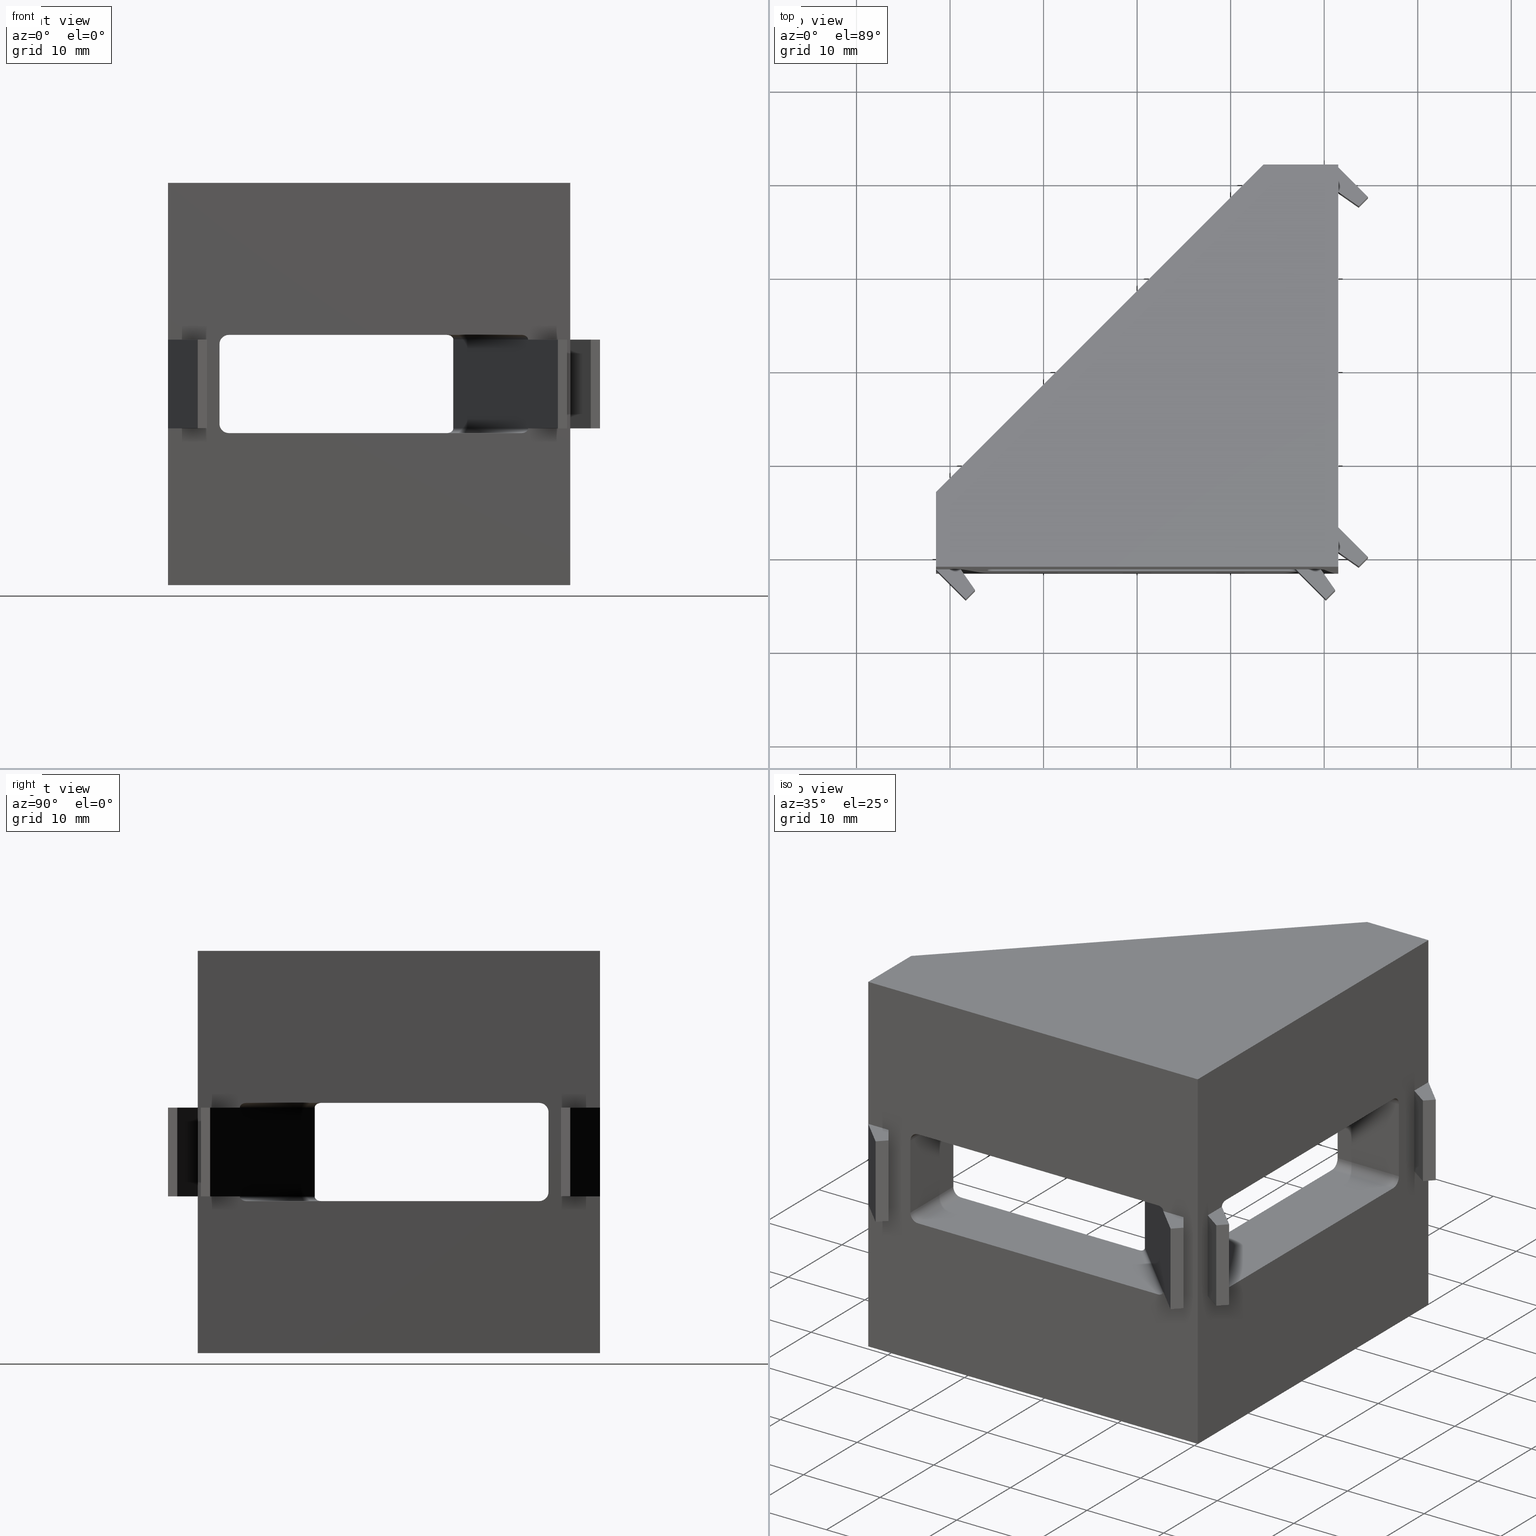
[diagram: canonical four-view strip — front | top / right | iso, engineering-drawing reading convention]
A machine part, canonical four-view strip (front | top / right | iso — engineering-drawing reading convention). The complete STEP part file that produces these views, byte-faithful:
ISO-10303-21;
HEADER;
/* Generated by software containing ST-Developer
 * from STEP Tools, Inc. (www.steptools.com) 
 */

FILE_DESCRIPTION(
/* description */ ('SQUADRETTA 42X42X42 PER CAVA 8 CON'),
/* implementation_level */ '2;1');

FILE_NAME(
/* name */ 
'Q:\\Catalogo\\2_Accessori Dierre\\Per Download Web e catalogo cartace
o\\CATALOGO ELEMENTI ASSEMBLAGGIO\\PAGINA 34\\DSQAL0000063.stp',
/* time_stamp */ '2018-05-10T15:30:21+02:00',
/* author */ ('fzagni'),
/* organization */ (''),
/* preprocessor_version */ 'ST-DEVELOPER v16.1',
/* originating_system */ 'Autodesk Inventor 2016',
/* authorisation */ '');

FILE_SCHEMA (('AUTOMOTIVE_DESIGN { 1 0 10303 214 3 1 1 }'));
ENDSEC;

DATA;
#10=MECHANICAL_DESIGN_GEOMETRIC_PRESENTATION_REPRESENTATION('',(#13),#1407);
#11=SHAPE_REPRESENTATION_RELATIONSHIP('SRR','None',#1416,#12);
#12=ADVANCED_BREP_SHAPE_REPRESENTATION('',(#14),#1406);
#13=STYLED_ITEM('',(#1425),#14);
#14=MANIFOLD_SOLID_BREP('Solido1',#867);
#15=FACE_BOUND('',#138,.T.);
#16=FACE_BOUND('',#140,.T.);
#17=FACE_BOUND('',#142,.T.);
#18=FACE_BOUND('',#155,.T.);
#19=CIRCLE('',#904,1.);
#20=CIRCLE('',#905,1.);
#21=CIRCLE('',#907,1.);
#22=CIRCLE('',#908,1.);
#23=CIRCLE('',#910,1.);
#24=CIRCLE('',#911,1.);
#25=CIRCLE('',#918,1.);
#26=CIRCLE('',#921,1.);
#27=PLANE('',#872);
#28=PLANE('',#876);
#29=PLANE('',#880);
#30=PLANE('',#884);
#31=PLANE('',#885);
#32=PLANE('',#886);
#33=PLANE('',#887);
#34=PLANE('',#888);
#35=PLANE('',#889);
#36=PLANE('',#890);
#37=PLANE('',#891);
#38=PLANE('',#892);
#39=PLANE('',#893);
#40=PLANE('',#894);
#41=PLANE('',#895);
#42=PLANE('',#896);
#43=PLANE('',#897);
#44=PLANE('',#898);
#45=PLANE('',#899);
#46=PLANE('',#900);
#47=PLANE('',#901);
#48=PLANE('',#902);
#49=PLANE('',#903);
#50=PLANE('',#906);
#51=PLANE('',#909);
#52=PLANE('',#912);
#53=PLANE('',#914);
#54=PLANE('',#916);
#55=PLANE('',#919);
#56=PLANE('',#922);
#57=PLANE('',#923);
#58=PLANE('',#924);
#59=PLANE('',#925);
#60=PLANE('',#926);
#61=PLANE('',#927);
#62=PLANE('',#928);
#63=PLANE('',#929);
#64=PLANE('',#930);
#65=FACE_OUTER_BOUND('',#111,.T.);
#66=FACE_OUTER_BOUND('',#112,.T.);
#67=FACE_OUTER_BOUND('',#113,.T.);
#68=FACE_OUTER_BOUND('',#114,.T.);
#69=FACE_OUTER_BOUND('',#115,.T.);
#70=FACE_OUTER_BOUND('',#116,.T.);
#71=FACE_OUTER_BOUND('',#117,.T.);
#72=FACE_OUTER_BOUND('',#118,.T.);
#73=FACE_OUTER_BOUND('',#119,.T.);
#74=FACE_OUTER_BOUND('',#120,.T.);
#75=FACE_OUTER_BOUND('',#121,.T.);
#76=FACE_OUTER_BOUND('',#122,.T.);
#77=FACE_OUTER_BOUND('',#123,.T.);
#78=FACE_OUTER_BOUND('',#124,.T.);
#79=FACE_OUTER_BOUND('',#125,.T.);
#80=FACE_OUTER_BOUND('',#126,.T.);
#81=FACE_OUTER_BOUND('',#127,.T.);
#82=FACE_OUTER_BOUND('',#128,.T.);
#83=FACE_OUTER_BOUND('',#129,.T.);
#84=FACE_OUTER_BOUND('',#130,.T.);
#85=FACE_OUTER_BOUND('',#131,.T.);
#86=FACE_OUTER_BOUND('',#132,.T.);
#87=FACE_OUTER_BOUND('',#133,.T.);
#88=FACE_OUTER_BOUND('',#134,.T.);
#89=FACE_OUTER_BOUND('',#135,.T.);
#90=FACE_OUTER_BOUND('',#136,.T.);
#91=FACE_OUTER_BOUND('',#137,.T.);
#92=FACE_OUTER_BOUND('',#139,.T.);
#93=FACE_OUTER_BOUND('',#141,.T.);
#94=FACE_OUTER_BOUND('',#143,.T.);
#95=FACE_OUTER_BOUND('',#144,.T.);
#96=FACE_OUTER_BOUND('',#145,.T.);
#97=FACE_OUTER_BOUND('',#146,.T.);
#98=FACE_OUTER_BOUND('',#147,.T.);
#99=FACE_OUTER_BOUND('',#148,.T.);
#100=FACE_OUTER_BOUND('',#149,.T.);
#101=FACE_OUTER_BOUND('',#150,.T.);
#102=FACE_OUTER_BOUND('',#151,.T.);
#103=FACE_OUTER_BOUND('',#152,.T.);
#104=FACE_OUTER_BOUND('',#153,.T.);
#105=FACE_OUTER_BOUND('',#154,.T.);
#106=FACE_OUTER_BOUND('',#156,.T.);
#107=FACE_OUTER_BOUND('',#157,.T.);
#108=FACE_OUTER_BOUND('',#158,.T.);
#109=FACE_OUTER_BOUND('',#159,.T.);
#110=FACE_OUTER_BOUND('',#160,.T.);
#111=EDGE_LOOP('',(#573,#574,#575,#576));
#112=EDGE_LOOP('',(#577,#578,#579,#580));
#113=EDGE_LOOP('',(#581,#582,#583,#584));
#114=EDGE_LOOP('',(#585,#586,#587,#588,#589,#590));
#115=EDGE_LOOP('',(#591,#592,#593,#594));
#116=EDGE_LOOP('',(#595,#596,#597,#598));
#117=EDGE_LOOP('',(#599,#600,#601,#602));
#118=EDGE_LOOP('',(#603,#604,#605,#606,#607,#608));
#119=EDGE_LOOP('',(#609,#610,#611,#612));
#120=EDGE_LOOP('',(#613,#614,#615,#616));
#121=EDGE_LOOP('',(#617,#618,#619,#620));
#122=EDGE_LOOP('',(#621,#622,#623,#624));
#123=EDGE_LOOP('',(#625,#626,#627,#628));
#124=EDGE_LOOP('',(#629,#630,#631,#632));
#125=EDGE_LOOP('',(#633,#634,#635,#636));
#126=EDGE_LOOP('',(#637,#638,#639,#640));
#127=EDGE_LOOP('',(#641,#642,#643,#644));
#128=EDGE_LOOP('',(#645,#646,#647,#648));
#129=EDGE_LOOP('',(#649,#650,#651,#652));
#130=EDGE_LOOP('',(#653,#654,#655,#656));
#131=EDGE_LOOP('',(#657,#658,#659,#660));
#132=EDGE_LOOP('',(#661,#662,#663,#664));
#133=EDGE_LOOP('',(#665,#666,#667,#668));
#134=EDGE_LOOP('',(#669,#670,#671,#672));
#135=EDGE_LOOP('',(#673,#674,#675,#676));
#136=EDGE_LOOP('',(#677,#678,#679,#680));
#137=EDGE_LOOP('',(#681,#682,#683,#684,#685,#686,#687,#688));
#138=EDGE_LOOP('',(#689,#690,#691,#692,#693,#694,#695,#696,#697,#698));
#139=EDGE_LOOP('',(#699,#700,#701,#702,#703,#704,#705,#706));
#140=EDGE_LOOP('',(#707,#708,#709,#710,#711,#712,#713,#714,#715,#716));
#141=EDGE_LOOP('',(#717,#718,#719,#720));
#142=EDGE_LOOP('',(#721,#722,#723,#724,#725,#726,#727,#728));
#143=EDGE_LOOP('',(#729,#730,#731,#732));
#144=EDGE_LOOP('',(#733,#734,#735,#736));
#145=EDGE_LOOP('',(#737,#738,#739,#740));
#146=EDGE_LOOP('',(#741,#742,#743,#744));
#147=EDGE_LOOP('',(#745,#746,#747,#748));
#148=EDGE_LOOP('',(#749,#750,#751,#752));
#149=EDGE_LOOP('',(#753,#754,#755,#756));
#150=EDGE_LOOP('',(#757,#758,#759,#760));
#151=EDGE_LOOP('',(#761,#762,#763));
#152=EDGE_LOOP('',(#764,#765,#766,#767,#768));
#153=EDGE_LOOP('',(#769,#770,#771,#772));
#154=EDGE_LOOP('',(#773,#774,#775,#776));
#155=EDGE_LOOP('',(#777,#778,#779,#780,#781,#782,#783,#784));
#156=EDGE_LOOP('',(#785,#786,#787,#788,#789,#790,#791,#792));
#157=EDGE_LOOP('',(#793,#794,#795,#796,#797));
#158=EDGE_LOOP('',(#798,#799,#800));
#159=EDGE_LOOP('',(#801,#802,#803,#804));
#160=EDGE_LOOP('',(#805,#806,#807,#808,#809,#810,#811,#812));
#161=LINE('',#1167,#265);
#162=LINE('',#1170,#266);
#163=LINE('',#1173,#267);
#164=LINE('',#1175,#268);
#165=LINE('',#1176,#269);
#166=LINE('',#1182,#270);
#167=LINE('',#1185,#271);
#168=LINE('',#1187,#272);
#169=LINE('',#1189,#273);
#170=LINE('',#1191,#274);
#171=LINE('',#1192,#275);
#172=LINE('',#1198,#276);
#173=LINE('',#1201,#277);
#174=LINE('',#1204,#278);
#175=LINE('',#1206,#279);
#176=LINE('',#1207,#280);
#177=LINE('',#1213,#281);
#178=LINE('',#1216,#282);
#179=LINE('',#1218,#283);
#180=LINE('',#1220,#284);
#181=LINE('',#1222,#285);
#182=LINE('',#1223,#286);
#183=LINE('',#1227,#287);
#184=LINE('',#1229,#288);
#185=LINE('',#1231,#289);
#186=LINE('',#1232,#290);
#187=LINE('',#1235,#291);
#188=LINE('',#1237,#292);
#189=LINE('',#1238,#293);
#190=LINE('',#1241,#294);
#191=LINE('',#1242,#295);
#192=LINE('',#1245,#296);
#193=LINE('',#1246,#297);
#194=LINE('',#1248,#298);
#195=LINE('',#1251,#299);
#196=LINE('',#1253,#300);
#197=LINE('',#1254,#301);
#198=LINE('',#1257,#302);
#199=LINE('',#1259,#303);
#200=LINE('',#1260,#304);
#201=LINE('',#1262,#305);
#202=LINE('',#1264,#306);
#203=LINE('',#1267,#307);
#204=LINE('',#1269,#308);
#205=LINE('',#1270,#309);
#206=LINE('',#1273,#310);
#207=LINE('',#1274,#311);
#208=LINE('',#1277,#312);
#209=LINE('',#1278,#313);
#210=LINE('',#1280,#314);
#211=LINE('',#1284,#315);
#212=LINE('',#1286,#316);
#213=LINE('',#1288,#317);
#214=LINE('',#1289,#318);
#215=LINE('',#1292,#319);
#216=LINE('',#1294,#320);
#217=LINE('',#1295,#321);
#218=LINE('',#1298,#322);
#219=LINE('',#1299,#323);
#220=LINE('',#1302,#324);
#221=LINE('',#1303,#325);
#222=LINE('',#1305,#326);
#223=LINE('',#1308,#327);
#224=LINE('',#1310,#328);
#225=LINE('',#1312,#329);
#226=LINE('',#1314,#330);
#227=LINE('',#1315,#331);
#228=LINE('',#1317,#332);
#229=LINE('',#1321,#333);
#230=LINE('',#1325,#334);
#231=LINE('',#1326,#335);
#232=LINE('',#1328,#336);
#233=LINE('',#1329,#337);
#234=LINE('',#1331,#338);
#235=LINE('',#1335,#339);
#236=LINE('',#1340,#340);
#237=LINE('',#1342,#341);
#238=LINE('',#1344,#342);
#239=LINE('',#1345,#343);
#240=LINE('',#1347,#344);
#241=LINE('',#1351,#345);
#242=LINE('',#1354,#346);
#243=LINE('',#1356,#347);
#244=LINE('',#1358,#348);
#245=LINE('',#1362,#349);
#246=LINE('',#1363,#350);
#247=LINE('',#1367,#351);
#248=LINE('',#1370,#352);
#249=LINE('',#1371,#353);
#250=LINE('',#1376,#354);
#251=LINE('',#1377,#355);
#252=LINE('',#1381,#356);
#253=LINE('',#1382,#357);
#254=LINE('',#1383,#358);
#255=LINE('',#1385,#359);
#256=LINE('',#1386,#360);
#257=LINE('',#1389,#361);
#258=LINE('',#1390,#362);
#259=LINE('',#1393,#363);
#260=LINE('',#1394,#364);
#261=LINE('',#1397,#365);
#262=LINE('',#1398,#366);
#263=LINE('',#1400,#367);
#264=LINE('',#1402,#368);
#265=VECTOR('',#937,11.3137084989848);
#266=VECTOR('',#940,11.3137084989848);
#267=VECTOR('',#943,31.2928932188135);
#268=VECTOR('',#944,8.);
#269=VECTOR('',#945,23.2928932188134);
#270=VECTOR('',#950,11.3137084989848);
#271=VECTOR('',#953,11.3137084989848);
#272=VECTOR('',#956,9.5);
#273=VECTOR('',#957,4.5);
#274=VECTOR('',#958,9.5);
#275=VECTOR('',#959,4.5);
#276=VECTOR('',#964,11.3137084989848);
#277=VECTOR('',#967,11.3137084989848);
#278=VECTOR('',#970,31.2928932188134);
#279=VECTOR('',#971,8.);
#280=VECTOR('',#972,23.2928932188134);
#281=VECTOR('',#977,11.3137084989848);
#282=VECTOR('',#980,11.3137084989848);
#283=VECTOR('',#983,9.5);
#284=VECTOR('',#984,4.5);
#285=VECTOR('',#985,9.5);
#286=VECTOR('',#986,4.5);
#287=VECTOR('',#989,2.63705336363195);
#288=VECTOR('',#990,2.67597576904168);
#289=VECTOR('',#991,1.39999999999999);
#290=VECTOR('',#992,4.5);
#291=VECTOR('',#995,9.5);
#292=VECTOR('',#996,2.67597576904168);
#293=VECTOR('',#997,9.5);
#294=VECTOR('',#1000,1.39999999999999);
#295=VECTOR('',#1001,9.5);
#296=VECTOR('',#1004,4.5);
#297=VECTOR('',#1005,9.5);
#298=VECTOR('',#1008,2.63705336363195);
#299=VECTOR('',#1011,2.63705336363196);
#300=VECTOR('',#1012,2.67597576904167);
#301=VECTOR('',#1013,1.4);
#302=VECTOR('',#1016,9.5);
#303=VECTOR('',#1017,2.67597576904167);
#304=VECTOR('',#1018,9.5);
#305=VECTOR('',#1021,1.4);
#306=VECTOR('',#1024,2.63705336363196);
#307=VECTOR('',#1027,2.63705336363195);
#308=VECTOR('',#1028,1.4);
#309=VECTOR('',#1029,2.67597576904168);
#310=VECTOR('',#1032,1.4);
#311=VECTOR('',#1033,9.5);
#312=VECTOR('',#1036,2.67597576904168);
#313=VECTOR('',#1037,9.5);
#314=VECTOR('',#1040,2.63705336363195);
#315=VECTOR('',#1043,2.63705336363196);
#316=VECTOR('',#1044,4.5);
#317=VECTOR('',#1045,1.4);
#318=VECTOR('',#1046,2.67597576904168);
#319=VECTOR('',#1049,9.5);
#320=VECTOR('',#1050,4.5);
#321=VECTOR('',#1051,9.5);
#322=VECTOR('',#1054,1.4);
#323=VECTOR('',#1055,9.5);
#324=VECTOR('',#1058,2.67597576904168);
#325=VECTOR('',#1059,9.5);
#326=VECTOR('',#1062,2.63705336363196);
#327=VECTOR('',#1065,16.75);
#328=VECTOR('',#1066,43.);
#329=VECTOR('',#1067,43.);
#330=VECTOR('',#1068,43.);
#331=VECTOR('',#1069,16.75);
#332=VECTOR('',#1070,31.2928932188135);
#333=VECTOR('',#1073,8.5);
#334=VECTOR('',#1078,16.75);
#335=VECTOR('',#1079,43.);
#336=VECTOR('',#1080,43.);
#337=VECTOR('',#1081,16.75);
#338=VECTOR('',#1082,31.2928932188135);
#339=VECTOR('',#1085,8.50000000000001);
#340=VECTOR('',#1090,35.);
#341=VECTOR('',#1091,33.);
#342=VECTOR('',#1092,35.);
#343=VECTOR('',#1093,33.);
#344=VECTOR('',#1094,23.2928932188134);
#345=VECTOR('',#1097,8.5);
#346=VECTOR('',#1102,8.);
#347=VECTOR('',#1105,8.);
#348=VECTOR('',#1108,8.);
#349=VECTOR('',#1113,23.2928932188134);
#350=VECTOR('',#1114,8.);
#351=VECTOR('',#1119,8.);
#352=VECTOR('',#1122,8.50000000000001);
#353=VECTOR('',#1123,8.);
#354=VECTOR('',#1130,35.);
#355=VECTOR('',#1131,49.4974746830583);
#356=VECTOR('',#1134,49.4974746830583);
#357=VECTOR('',#1135,8.);
#358=VECTOR('',#1136,8.);
#359=VECTOR('',#1139,5.);
#360=VECTOR('',#1140,5.);
#361=VECTOR('',#1143,35.);
#362=VECTOR('',#1144,33.);
#363=VECTOR('',#1147,8.);
#364=VECTOR('',#1148,5.);
#365=VECTOR('',#1151,49.4974746830583);
#366=VECTOR('',#1152,8.);
#367=VECTOR('',#1155,49.4974746830583);
#368=VECTOR('',#1158,5.);
#369=ELLIPSE('',#870,0.707106781186548,0.5);
#370=ELLIPSE('',#871,0.707106781186549,0.5);
#371=ELLIPSE('',#874,0.707106781186548,0.5);
#372=ELLIPSE('',#875,0.707106781186549,0.5);
#373=ELLIPSE('',#878,0.707106781186547,0.5);
#374=ELLIPSE('',#879,0.707106781186547,0.5);
#375=ELLIPSE('',#882,0.707106781186548,0.5);
#376=ELLIPSE('',#883,0.707106781186547,0.5);
#377=VERTEX_POINT('',#1163);
#378=VERTEX_POINT('',#1164);
#379=VERTEX_POINT('',#1166);
#380=VERTEX_POINT('',#1168);
#381=VERTEX_POINT('',#1172);
#382=VERTEX_POINT('',#1174);
#383=VERTEX_POINT('',#1178);
#384=VERTEX_POINT('',#1179);
#385=VERTEX_POINT('',#1181);
#386=VERTEX_POINT('',#1183);
#387=VERTEX_POINT('',#1188);
#388=VERTEX_POINT('',#1190);
#389=VERTEX_POINT('',#1194);
#390=VERTEX_POINT('',#1195);
#391=VERTEX_POINT('',#1197);
#392=VERTEX_POINT('',#1199);
#393=VERTEX_POINT('',#1203);
#394=VERTEX_POINT('',#1205);
#395=VERTEX_POINT('',#1209);
#396=VERTEX_POINT('',#1210);
#397=VERTEX_POINT('',#1212);
#398=VERTEX_POINT('',#1214);
#399=VERTEX_POINT('',#1219);
#400=VERTEX_POINT('',#1221);
#401=VERTEX_POINT('',#1225);
#402=VERTEX_POINT('',#1226);
#403=VERTEX_POINT('',#1228);
#404=VERTEX_POINT('',#1230);
#405=VERTEX_POINT('',#1234);
#406=VERTEX_POINT('',#1236);
#407=VERTEX_POINT('',#1240);
#408=VERTEX_POINT('',#1244);
#409=VERTEX_POINT('',#1250);
#410=VERTEX_POINT('',#1252);
#411=VERTEX_POINT('',#1256);
#412=VERTEX_POINT('',#1258);
#413=VERTEX_POINT('',#1266);
#414=VERTEX_POINT('',#1268);
#415=VERTEX_POINT('',#1272);
#416=VERTEX_POINT('',#1276);
#417=VERTEX_POINT('',#1282);
#418=VERTEX_POINT('',#1283);
#419=VERTEX_POINT('',#1285);
#420=VERTEX_POINT('',#1287);
#421=VERTEX_POINT('',#1291);
#422=VERTEX_POINT('',#1293);
#423=VERTEX_POINT('',#1297);
#424=VERTEX_POINT('',#1301);
#425=VERTEX_POINT('',#1307);
#426=VERTEX_POINT('',#1309);
#427=VERTEX_POINT('',#1311);
#428=VERTEX_POINT('',#1313);
#429=VERTEX_POINT('',#1316);
#430=VERTEX_POINT('',#1318);
#431=VERTEX_POINT('',#1320);
#432=VERTEX_POINT('',#1324);
#433=VERTEX_POINT('',#1327);
#434=VERTEX_POINT('',#1330);
#435=VERTEX_POINT('',#1332);
#436=VERTEX_POINT('',#1334);
#437=VERTEX_POINT('',#1338);
#438=VERTEX_POINT('',#1339);
#439=VERTEX_POINT('',#1341);
#440=VERTEX_POINT('',#1343);
#441=VERTEX_POINT('',#1346);
#442=VERTEX_POINT('',#1348);
#443=VERTEX_POINT('',#1350);
#444=VERTEX_POINT('',#1361);
#445=VERTEX_POINT('',#1365);
#446=VERTEX_POINT('',#1369);
#447=VERTEX_POINT('',#1375);
#448=VERTEX_POINT('',#1379);
#449=VERTEX_POINT('',#1380);
#450=VERTEX_POINT('',#1388);
#451=VERTEX_POINT('',#1392);
#452=VERTEX_POINT('',#1396);
#453=EDGE_CURVE('',#377,#378,#369,.T.);
#454=EDGE_CURVE('',#378,#379,#161,.T.);
#455=EDGE_CURVE('',#379,#380,#370,.T.);
#456=EDGE_CURVE('',#380,#377,#162,.T.);
#457=EDGE_CURVE('',#381,#378,#163,.T.);
#458=EDGE_CURVE('',#382,#381,#164,.T.);
#459=EDGE_CURVE('',#379,#382,#165,.T.);
#460=EDGE_CURVE('',#383,#384,#371,.T.);
#461=EDGE_CURVE('',#384,#385,#166,.T.);
#462=EDGE_CURVE('',#385,#386,#372,.T.);
#463=EDGE_CURVE('',#386,#383,#167,.T.);
#464=EDGE_CURVE('',#385,#380,#168,.T.);
#465=EDGE_CURVE('',#387,#384,#169,.T.);
#466=EDGE_CURVE('',#388,#387,#170,.T.);
#467=EDGE_CURVE('',#377,#388,#171,.T.);
#468=EDGE_CURVE('',#389,#390,#373,.T.);
#469=EDGE_CURVE('',#390,#391,#172,.T.);
#470=EDGE_CURVE('',#391,#392,#374,.T.);
#471=EDGE_CURVE('',#392,#389,#173,.T.);
#472=EDGE_CURVE('',#393,#390,#174,.T.);
#473=EDGE_CURVE('',#394,#393,#175,.T.);
#474=EDGE_CURVE('',#391,#394,#176,.T.);
#475=EDGE_CURVE('',#395,#396,#375,.T.);
#476=EDGE_CURVE('',#396,#397,#177,.T.);
#477=EDGE_CURVE('',#397,#398,#376,.T.);
#478=EDGE_CURVE('',#398,#395,#178,.T.);
#479=EDGE_CURVE('',#397,#392,#179,.T.);
#480=EDGE_CURVE('',#399,#396,#180,.T.);
#481=EDGE_CURVE('',#399,#400,#181,.T.);
#482=EDGE_CURVE('',#389,#400,#182,.T.);
#483=EDGE_CURVE('',#401,#402,#183,.T.);
#484=EDGE_CURVE('',#401,#403,#184,.T.);
#485=EDGE_CURVE('',#403,#404,#185,.T.);
#486=EDGE_CURVE('',#404,#402,#186,.T.);
#487=EDGE_CURVE('',#405,#401,#187,.T.);
#488=EDGE_CURVE('',#406,#405,#188,.T.);
#489=EDGE_CURVE('',#406,#403,#189,.T.);
#490=EDGE_CURVE('',#407,#406,#190,.T.);
#491=EDGE_CURVE('',#407,#404,#191,.T.);
#492=EDGE_CURVE('',#408,#407,#192,.T.);
#493=EDGE_CURVE('',#408,#402,#193,.T.);
#494=EDGE_CURVE('',#408,#405,#194,.T.);
#495=EDGE_CURVE('',#409,#396,#195,.T.);
#496=EDGE_CURVE('',#409,#410,#196,.T.);
#497=EDGE_CURVE('',#410,#399,#197,.T.);
#498=EDGE_CURVE('',#411,#409,#198,.T.);
#499=EDGE_CURVE('',#412,#411,#199,.T.);
#500=EDGE_CURVE('',#410,#412,#200,.T.);
#501=EDGE_CURVE('',#400,#412,#201,.T.);
#502=EDGE_CURVE('',#389,#411,#202,.T.);
#503=EDGE_CURVE('',#377,#413,#203,.T.);
#504=EDGE_CURVE('',#388,#414,#204,.T.);
#505=EDGE_CURVE('',#414,#413,#205,.T.);
#506=EDGE_CURVE('',#415,#387,#206,.T.);
#507=EDGE_CURVE('',#414,#415,#207,.T.);
#508=EDGE_CURVE('',#416,#415,#208,.T.);
#509=EDGE_CURVE('',#413,#416,#209,.T.);
#510=EDGE_CURVE('',#416,#384,#210,.T.);
#511=EDGE_CURVE('',#417,#418,#211,.T.);
#512=EDGE_CURVE('',#417,#419,#212,.T.);
#513=EDGE_CURVE('',#419,#420,#213,.T.);
#514=EDGE_CURVE('',#420,#418,#214,.T.);
#515=EDGE_CURVE('',#417,#421,#215,.T.);
#516=EDGE_CURVE('',#422,#421,#216,.T.);
#517=EDGE_CURVE('',#419,#422,#217,.T.);
#518=EDGE_CURVE('',#423,#422,#218,.T.);
#519=EDGE_CURVE('',#420,#423,#219,.T.);
#520=EDGE_CURVE('',#424,#423,#220,.T.);
#521=EDGE_CURVE('',#418,#424,#221,.T.);
#522=EDGE_CURVE('',#424,#421,#222,.T.);
#523=EDGE_CURVE('',#402,#425,#223,.T.);
#524=EDGE_CURVE('',#426,#425,#224,.T.);
#525=EDGE_CURVE('',#427,#426,#225,.T.);
#526=EDGE_CURVE('',#428,#427,#226,.T.);
#527=EDGE_CURVE('',#428,#408,#227,.T.);
#528=EDGE_CURVE('',#395,#429,#228,.T.);
#529=EDGE_CURVE('',#429,#430,#19,.T.);
#530=EDGE_CURVE('',#430,#431,#229,.T.);
#531=EDGE_CURVE('',#431,#393,#20,.T.);
#532=EDGE_CURVE('',#421,#432,#230,.T.);
#533=EDGE_CURVE('',#427,#432,#231,.T.);
#534=EDGE_CURVE('',#433,#426,#232,.T.);
#535=EDGE_CURVE('',#433,#417,#233,.T.);
#536=EDGE_CURVE('',#383,#434,#234,.T.);
#537=EDGE_CURVE('',#434,#435,#21,.T.);
#538=EDGE_CURVE('',#435,#436,#235,.T.);
#539=EDGE_CURVE('',#436,#381,#22,.T.);
#540=EDGE_CURVE('',#437,#438,#236,.T.);
#541=EDGE_CURVE('',#439,#438,#237,.T.);
#542=EDGE_CURVE('',#439,#440,#238,.T.);
#543=EDGE_CURVE('',#440,#437,#239,.T.);
#544=EDGE_CURVE('',#441,#398,#240,.T.);
#545=EDGE_CURVE('',#394,#442,#23,.T.);
#546=EDGE_CURVE('',#442,#443,#241,.T.);
#547=EDGE_CURVE('',#443,#441,#24,.T.);
#548=EDGE_CURVE('',#441,#429,#242,.T.);
#549=EDGE_CURVE('',#443,#430,#243,.T.);
#550=EDGE_CURVE('',#442,#431,#244,.T.);
#551=EDGE_CURVE('',#444,#386,#245,.T.);
#552=EDGE_CURVE('',#444,#434,#246,.T.);
#553=EDGE_CURVE('',#445,#444,#25,.T.);
#554=EDGE_CURVE('',#445,#435,#247,.T.);
#555=EDGE_CURVE('',#446,#445,#248,.T.);
#556=EDGE_CURVE('',#446,#436,#249,.T.);
#557=EDGE_CURVE('',#382,#446,#26,.T.);
#558=EDGE_CURVE('',#447,#437,#250,.T.);
#559=EDGE_CURVE('',#438,#447,#251,.T.);
#560=EDGE_CURVE('',#448,#449,#252,.T.);
#561=EDGE_CURVE('',#448,#433,#253,.T.);
#562=EDGE_CURVE('',#425,#449,#254,.T.);
#563=EDGE_CURVE('',#438,#449,#255,.T.);
#564=EDGE_CURVE('',#447,#448,#256,.T.);
#565=EDGE_CURVE('',#440,#450,#257,.T.);
#566=EDGE_CURVE('',#450,#447,#258,.T.);
#567=EDGE_CURVE('',#451,#428,#259,.T.);
#568=EDGE_CURVE('',#451,#439,#260,.T.);
#569=EDGE_CURVE('',#451,#452,#261,.T.);
#570=EDGE_CURVE('',#432,#452,#262,.T.);
#571=EDGE_CURVE('',#439,#450,#263,.T.);
#572=EDGE_CURVE('',#452,#450,#264,.T.);
#573=ORIENTED_EDGE('',*,*,#453,.T.);
#574=ORIENTED_EDGE('',*,*,#454,.T.);
#575=ORIENTED_EDGE('',*,*,#455,.T.);
#576=ORIENTED_EDGE('',*,*,#456,.T.);
#577=ORIENTED_EDGE('',*,*,#454,.F.);
#578=ORIENTED_EDGE('',*,*,#457,.F.);
#579=ORIENTED_EDGE('',*,*,#458,.F.);
#580=ORIENTED_EDGE('',*,*,#459,.F.);
#581=ORIENTED_EDGE('',*,*,#460,.T.);
#582=ORIENTED_EDGE('',*,*,#461,.T.);
#583=ORIENTED_EDGE('',*,*,#462,.T.);
#584=ORIENTED_EDGE('',*,*,#463,.T.);
#585=ORIENTED_EDGE('',*,*,#456,.F.);
#586=ORIENTED_EDGE('',*,*,#464,.F.);
#587=ORIENTED_EDGE('',*,*,#461,.F.);
#588=ORIENTED_EDGE('',*,*,#465,.F.);
#589=ORIENTED_EDGE('',*,*,#466,.F.);
#590=ORIENTED_EDGE('',*,*,#467,.F.);
#591=ORIENTED_EDGE('',*,*,#468,.T.);
#592=ORIENTED_EDGE('',*,*,#469,.T.);
#593=ORIENTED_EDGE('',*,*,#470,.T.);
#594=ORIENTED_EDGE('',*,*,#471,.T.);
#595=ORIENTED_EDGE('',*,*,#469,.F.);
#596=ORIENTED_EDGE('',*,*,#472,.F.);
#597=ORIENTED_EDGE('',*,*,#473,.F.);
#598=ORIENTED_EDGE('',*,*,#474,.F.);
#599=ORIENTED_EDGE('',*,*,#475,.T.);
#600=ORIENTED_EDGE('',*,*,#476,.T.);
#601=ORIENTED_EDGE('',*,*,#477,.T.);
#602=ORIENTED_EDGE('',*,*,#478,.T.);
#603=ORIENTED_EDGE('',*,*,#471,.F.);
#604=ORIENTED_EDGE('',*,*,#479,.F.);
#605=ORIENTED_EDGE('',*,*,#476,.F.);
#606=ORIENTED_EDGE('',*,*,#480,.F.);
#607=ORIENTED_EDGE('',*,*,#481,.T.);
#608=ORIENTED_EDGE('',*,*,#482,.F.);
#609=ORIENTED_EDGE('',*,*,#483,.F.);
#610=ORIENTED_EDGE('',*,*,#484,.T.);
#611=ORIENTED_EDGE('',*,*,#485,.T.);
#612=ORIENTED_EDGE('',*,*,#486,.T.);
#613=ORIENTED_EDGE('',*,*,#487,.F.);
#614=ORIENTED_EDGE('',*,*,#488,.F.);
#615=ORIENTED_EDGE('',*,*,#489,.T.);
#616=ORIENTED_EDGE('',*,*,#484,.F.);
#617=ORIENTED_EDGE('',*,*,#489,.F.);
#618=ORIENTED_EDGE('',*,*,#490,.F.);
#619=ORIENTED_EDGE('',*,*,#491,.T.);
#620=ORIENTED_EDGE('',*,*,#485,.F.);
#621=ORIENTED_EDGE('',*,*,#491,.F.);
#622=ORIENTED_EDGE('',*,*,#492,.F.);
#623=ORIENTED_EDGE('',*,*,#493,.T.);
#624=ORIENTED_EDGE('',*,*,#486,.F.);
#625=ORIENTED_EDGE('',*,*,#494,.F.);
#626=ORIENTED_EDGE('',*,*,#492,.T.);
#627=ORIENTED_EDGE('',*,*,#490,.T.);
#628=ORIENTED_EDGE('',*,*,#488,.T.);
#629=ORIENTED_EDGE('',*,*,#495,.F.);
#630=ORIENTED_EDGE('',*,*,#496,.T.);
#631=ORIENTED_EDGE('',*,*,#497,.T.);
#632=ORIENTED_EDGE('',*,*,#480,.T.);
#633=ORIENTED_EDGE('',*,*,#498,.F.);
#634=ORIENTED_EDGE('',*,*,#499,.F.);
#635=ORIENTED_EDGE('',*,*,#500,.F.);
#636=ORIENTED_EDGE('',*,*,#496,.F.);
#637=ORIENTED_EDGE('',*,*,#500,.T.);
#638=ORIENTED_EDGE('',*,*,#501,.F.);
#639=ORIENTED_EDGE('',*,*,#481,.F.);
#640=ORIENTED_EDGE('',*,*,#497,.F.);
#641=ORIENTED_EDGE('',*,*,#502,.F.);
#642=ORIENTED_EDGE('',*,*,#482,.T.);
#643=ORIENTED_EDGE('',*,*,#501,.T.);
#644=ORIENTED_EDGE('',*,*,#499,.T.);
#645=ORIENTED_EDGE('',*,*,#503,.F.);
#646=ORIENTED_EDGE('',*,*,#467,.T.);
#647=ORIENTED_EDGE('',*,*,#504,.T.);
#648=ORIENTED_EDGE('',*,*,#505,.T.);
#649=ORIENTED_EDGE('',*,*,#466,.T.);
#650=ORIENTED_EDGE('',*,*,#506,.F.);
#651=ORIENTED_EDGE('',*,*,#507,.F.);
#652=ORIENTED_EDGE('',*,*,#504,.F.);
#653=ORIENTED_EDGE('',*,*,#507,.T.);
#654=ORIENTED_EDGE('',*,*,#508,.F.);
#655=ORIENTED_EDGE('',*,*,#509,.F.);
#656=ORIENTED_EDGE('',*,*,#505,.F.);
#657=ORIENTED_EDGE('',*,*,#510,.F.);
#658=ORIENTED_EDGE('',*,*,#508,.T.);
#659=ORIENTED_EDGE('',*,*,#506,.T.);
#660=ORIENTED_EDGE('',*,*,#465,.T.);
#661=ORIENTED_EDGE('',*,*,#511,.F.);
#662=ORIENTED_EDGE('',*,*,#512,.T.);
#663=ORIENTED_EDGE('',*,*,#513,.T.);
#664=ORIENTED_EDGE('',*,*,#514,.T.);
#665=ORIENTED_EDGE('',*,*,#515,.T.);
#666=ORIENTED_EDGE('',*,*,#516,.F.);
#667=ORIENTED_EDGE('',*,*,#517,.F.);
#668=ORIENTED_EDGE('',*,*,#512,.F.);
#669=ORIENTED_EDGE('',*,*,#517,.T.);
#670=ORIENTED_EDGE('',*,*,#518,.F.);
#671=ORIENTED_EDGE('',*,*,#519,.F.);
#672=ORIENTED_EDGE('',*,*,#513,.F.);
#673=ORIENTED_EDGE('',*,*,#519,.T.);
#674=ORIENTED_EDGE('',*,*,#520,.F.);
#675=ORIENTED_EDGE('',*,*,#521,.F.);
#676=ORIENTED_EDGE('',*,*,#514,.F.);
#677=ORIENTED_EDGE('',*,*,#522,.F.);
#678=ORIENTED_EDGE('',*,*,#520,.T.);
#679=ORIENTED_EDGE('',*,*,#518,.T.);
#680=ORIENTED_EDGE('',*,*,#516,.T.);
#681=ORIENTED_EDGE('',*,*,#494,.T.);
#682=ORIENTED_EDGE('',*,*,#487,.T.);
#683=ORIENTED_EDGE('',*,*,#483,.T.);
#684=ORIENTED_EDGE('',*,*,#523,.T.);
#685=ORIENTED_EDGE('',*,*,#524,.F.);
#686=ORIENTED_EDGE('',*,*,#525,.F.);
#687=ORIENTED_EDGE('',*,*,#526,.F.);
#688=ORIENTED_EDGE('',*,*,#527,.T.);
#689=ORIENTED_EDGE('',*,*,#502,.T.);
#690=ORIENTED_EDGE('',*,*,#498,.T.);
#691=ORIENTED_EDGE('',*,*,#495,.T.);
#692=ORIENTED_EDGE('',*,*,#475,.F.);
#693=ORIENTED_EDGE('',*,*,#528,.T.);
#694=ORIENTED_EDGE('',*,*,#529,.T.);
#695=ORIENTED_EDGE('',*,*,#530,.T.);
#696=ORIENTED_EDGE('',*,*,#531,.T.);
#697=ORIENTED_EDGE('',*,*,#472,.T.);
#698=ORIENTED_EDGE('',*,*,#468,.F.);
#699=ORIENTED_EDGE('',*,*,#522,.T.);
#700=ORIENTED_EDGE('',*,*,#532,.T.);
#701=ORIENTED_EDGE('',*,*,#533,.F.);
#702=ORIENTED_EDGE('',*,*,#525,.T.);
#703=ORIENTED_EDGE('',*,*,#534,.F.);
#704=ORIENTED_EDGE('',*,*,#535,.T.);
#705=ORIENTED_EDGE('',*,*,#511,.T.);
#706=ORIENTED_EDGE('',*,*,#521,.T.);
#707=ORIENTED_EDGE('',*,*,#510,.T.);
#708=ORIENTED_EDGE('',*,*,#460,.F.);
#709=ORIENTED_EDGE('',*,*,#536,.T.);
#710=ORIENTED_EDGE('',*,*,#537,.T.);
#711=ORIENTED_EDGE('',*,*,#538,.T.);
#712=ORIENTED_EDGE('',*,*,#539,.T.);
#713=ORIENTED_EDGE('',*,*,#457,.T.);
#714=ORIENTED_EDGE('',*,*,#453,.F.);
#715=ORIENTED_EDGE('',*,*,#503,.T.);
#716=ORIENTED_EDGE('',*,*,#509,.T.);
#717=ORIENTED_EDGE('',*,*,#540,.T.);
#718=ORIENTED_EDGE('',*,*,#541,.F.);
#719=ORIENTED_EDGE('',*,*,#542,.T.);
#720=ORIENTED_EDGE('',*,*,#543,.T.);
#721=ORIENTED_EDGE('',*,*,#544,.T.);
#722=ORIENTED_EDGE('',*,*,#477,.F.);
#723=ORIENTED_EDGE('',*,*,#479,.T.);
#724=ORIENTED_EDGE('',*,*,#470,.F.);
#725=ORIENTED_EDGE('',*,*,#474,.T.);
#726=ORIENTED_EDGE('',*,*,#545,.T.);
#727=ORIENTED_EDGE('',*,*,#546,.T.);
#728=ORIENTED_EDGE('',*,*,#547,.T.);
#729=ORIENTED_EDGE('',*,*,#478,.F.);
#730=ORIENTED_EDGE('',*,*,#544,.F.);
#731=ORIENTED_EDGE('',*,*,#548,.T.);
#732=ORIENTED_EDGE('',*,*,#528,.F.);
#733=ORIENTED_EDGE('',*,*,#529,.F.);
#734=ORIENTED_EDGE('',*,*,#548,.F.);
#735=ORIENTED_EDGE('',*,*,#547,.F.);
#736=ORIENTED_EDGE('',*,*,#549,.T.);
#737=ORIENTED_EDGE('',*,*,#530,.F.);
#738=ORIENTED_EDGE('',*,*,#549,.F.);
#739=ORIENTED_EDGE('',*,*,#546,.F.);
#740=ORIENTED_EDGE('',*,*,#550,.T.);
#741=ORIENTED_EDGE('',*,*,#531,.F.);
#742=ORIENTED_EDGE('',*,*,#550,.F.);
#743=ORIENTED_EDGE('',*,*,#545,.F.);
#744=ORIENTED_EDGE('',*,*,#473,.T.);
#745=ORIENTED_EDGE('',*,*,#463,.F.);
#746=ORIENTED_EDGE('',*,*,#551,.F.);
#747=ORIENTED_EDGE('',*,*,#552,.T.);
#748=ORIENTED_EDGE('',*,*,#536,.F.);
#749=ORIENTED_EDGE('',*,*,#537,.F.);
#750=ORIENTED_EDGE('',*,*,#552,.F.);
#751=ORIENTED_EDGE('',*,*,#553,.F.);
#752=ORIENTED_EDGE('',*,*,#554,.T.);
#753=ORIENTED_EDGE('',*,*,#538,.F.);
#754=ORIENTED_EDGE('',*,*,#554,.F.);
#755=ORIENTED_EDGE('',*,*,#555,.F.);
#756=ORIENTED_EDGE('',*,*,#556,.T.);
#757=ORIENTED_EDGE('',*,*,#539,.F.);
#758=ORIENTED_EDGE('',*,*,#556,.F.);
#759=ORIENTED_EDGE('',*,*,#557,.F.);
#760=ORIENTED_EDGE('',*,*,#458,.T.);
#761=ORIENTED_EDGE('',*,*,#558,.F.);
#762=ORIENTED_EDGE('',*,*,#559,.F.);
#763=ORIENTED_EDGE('',*,*,#540,.F.);
#764=ORIENTED_EDGE('',*,*,#560,.F.);
#765=ORIENTED_EDGE('',*,*,#561,.T.);
#766=ORIENTED_EDGE('',*,*,#534,.T.);
#767=ORIENTED_EDGE('',*,*,#524,.T.);
#768=ORIENTED_EDGE('',*,*,#562,.T.);
#769=ORIENTED_EDGE('',*,*,#563,.F.);
#770=ORIENTED_EDGE('',*,*,#559,.T.);
#771=ORIENTED_EDGE('',*,*,#564,.T.);
#772=ORIENTED_EDGE('',*,*,#560,.T.);
#773=ORIENTED_EDGE('',*,*,#558,.T.);
#774=ORIENTED_EDGE('',*,*,#543,.F.);
#775=ORIENTED_EDGE('',*,*,#565,.T.);
#776=ORIENTED_EDGE('',*,*,#566,.T.);
#777=ORIENTED_EDGE('',*,*,#459,.T.);
#778=ORIENTED_EDGE('',*,*,#557,.T.);
#779=ORIENTED_EDGE('',*,*,#555,.T.);
#780=ORIENTED_EDGE('',*,*,#553,.T.);
#781=ORIENTED_EDGE('',*,*,#551,.T.);
#782=ORIENTED_EDGE('',*,*,#462,.F.);
#783=ORIENTED_EDGE('',*,*,#464,.T.);
#784=ORIENTED_EDGE('',*,*,#455,.F.);
#785=ORIENTED_EDGE('',*,*,#563,.T.);
#786=ORIENTED_EDGE('',*,*,#562,.F.);
#787=ORIENTED_EDGE('',*,*,#523,.F.);
#788=ORIENTED_EDGE('',*,*,#493,.F.);
#789=ORIENTED_EDGE('',*,*,#527,.F.);
#790=ORIENTED_EDGE('',*,*,#567,.F.);
#791=ORIENTED_EDGE('',*,*,#568,.T.);
#792=ORIENTED_EDGE('',*,*,#541,.T.);
#793=ORIENTED_EDGE('',*,*,#569,.F.);
#794=ORIENTED_EDGE('',*,*,#567,.T.);
#795=ORIENTED_EDGE('',*,*,#526,.T.);
#796=ORIENTED_EDGE('',*,*,#533,.T.);
#797=ORIENTED_EDGE('',*,*,#570,.T.);
#798=ORIENTED_EDGE('',*,*,#565,.F.);
#799=ORIENTED_EDGE('',*,*,#542,.F.);
#800=ORIENTED_EDGE('',*,*,#571,.T.);
#801=ORIENTED_EDGE('',*,*,#572,.T.);
#802=ORIENTED_EDGE('',*,*,#571,.F.);
#803=ORIENTED_EDGE('',*,*,#568,.F.);
#804=ORIENTED_EDGE('',*,*,#569,.T.);
#805=ORIENTED_EDGE('',*,*,#535,.F.);
#806=ORIENTED_EDGE('',*,*,#561,.F.);
#807=ORIENTED_EDGE('',*,*,#564,.F.);
#808=ORIENTED_EDGE('',*,*,#566,.F.);
#809=ORIENTED_EDGE('',*,*,#572,.F.);
#810=ORIENTED_EDGE('',*,*,#570,.F.);
#811=ORIENTED_EDGE('',*,*,#532,.F.);
#812=ORIENTED_EDGE('',*,*,#515,.F.);
#813=CYLINDRICAL_SURFACE('',#869,0.5);
#814=CYLINDRICAL_SURFACE('',#873,0.5);
#815=CYLINDRICAL_SURFACE('',#877,0.5);
#816=CYLINDRICAL_SURFACE('',#881,0.5);
#817=CYLINDRICAL_SURFACE('',#913,1.);
#818=CYLINDRICAL_SURFACE('',#915,1.);
#819=CYLINDRICAL_SURFACE('',#917,1.);
#820=CYLINDRICAL_SURFACE('',#920,1.);
#821=ADVANCED_FACE('',(#65),#813,.F.);
#822=ADVANCED_FACE('',(#66),#27,.F.);
#823=ADVANCED_FACE('',(#67),#814,.F.);
#824=ADVANCED_FACE('',(#68),#28,.F.);
#825=ADVANCED_FACE('',(#69),#815,.F.);
#826=ADVANCED_FACE('',(#70),#29,.F.);
#827=ADVANCED_FACE('',(#71),#816,.F.);
#828=ADVANCED_FACE('',(#72),#30,.F.);
#829=ADVANCED_FACE('',(#73),#31,.T.);
#830=ADVANCED_FACE('',(#74),#32,.T.);
#831=ADVANCED_FACE('',(#75),#33,.T.);
#832=ADVANCED_FACE('',(#76),#34,.T.);
#833=ADVANCED_FACE('',(#77),#35,.T.);
#834=ADVANCED_FACE('',(#78),#36,.T.);
#835=ADVANCED_FACE('',(#79),#37,.T.);
#836=ADVANCED_FACE('',(#80),#38,.T.);
#837=ADVANCED_FACE('',(#81),#39,.T.);
#838=ADVANCED_FACE('',(#82),#40,.T.);
#839=ADVANCED_FACE('',(#83),#41,.T.);
#840=ADVANCED_FACE('',(#84),#42,.T.);
#841=ADVANCED_FACE('',(#85),#43,.T.);
#842=ADVANCED_FACE('',(#86),#44,.T.);
#843=ADVANCED_FACE('',(#87),#45,.T.);
#844=ADVANCED_FACE('',(#88),#46,.T.);
#845=ADVANCED_FACE('',(#89),#47,.T.);
#846=ADVANCED_FACE('',(#90),#48,.T.);
#847=ADVANCED_FACE('',(#91,#15),#49,.T.);
#848=ADVANCED_FACE('',(#92,#16),#50,.T.);
#849=ADVANCED_FACE('',(#93,#17),#51,.T.);
#850=ADVANCED_FACE('',(#94),#52,.F.);
#851=ADVANCED_FACE('',(#95),#817,.F.);
#852=ADVANCED_FACE('',(#96),#53,.F.);
#853=ADVANCED_FACE('',(#97),#818,.F.);
#854=ADVANCED_FACE('',(#98),#54,.F.);
#855=ADVANCED_FACE('',(#99),#819,.F.);
#856=ADVANCED_FACE('',(#100),#55,.F.);
#857=ADVANCED_FACE('',(#101),#820,.F.);
#858=ADVANCED_FACE('',(#102),#56,.T.);
#859=ADVANCED_FACE('',(#103),#57,.F.);
#860=ADVANCED_FACE('',(#104),#58,.T.);
#861=ADVANCED_FACE('',(#105,#18),#59,.T.);
#862=ADVANCED_FACE('',(#106),#60,.T.);
#863=ADVANCED_FACE('',(#107),#61,.T.);
#864=ADVANCED_FACE('',(#108),#62,.F.);
#865=ADVANCED_FACE('',(#109),#63,.T.);
#866=ADVANCED_FACE('',(#110),#64,.T.);
#867=CLOSED_SHELL('',(#821,#822,#823,#824,#825,#826,#827,#828,#829,#830,
#831,#832,#833,#834,#835,#836,#837,#838,#839,#840,#841,#842,#843,#844,#845,
#846,#847,#848,#849,#850,#851,#852,#853,#854,#855,#856,#857,#858,#859,#860,
#861,#862,#863,#864,#865,#866));
#868=AXIS2_PLACEMENT_3D('placement',#1161,#931,#932);
#869=AXIS2_PLACEMENT_3D('',#1162,#933,#934);
#870=AXIS2_PLACEMENT_3D('',#1165,#935,#936);
#871=AXIS2_PLACEMENT_3D('',#1169,#938,#939);
#872=AXIS2_PLACEMENT_3D('',#1171,#941,#942);
#873=AXIS2_PLACEMENT_3D('',#1177,#946,#947);
#874=AXIS2_PLACEMENT_3D('',#1180,#948,#949);
#875=AXIS2_PLACEMENT_3D('',#1184,#951,#952);
#876=AXIS2_PLACEMENT_3D('',#1186,#954,#955);
#877=AXIS2_PLACEMENT_3D('',#1193,#960,#961);
#878=AXIS2_PLACEMENT_3D('',#1196,#962,#963);
#879=AXIS2_PLACEMENT_3D('',#1200,#965,#966);
#880=AXIS2_PLACEMENT_3D('',#1202,#968,#969);
#881=AXIS2_PLACEMENT_3D('',#1208,#973,#974);
#882=AXIS2_PLACEMENT_3D('',#1211,#975,#976);
#883=AXIS2_PLACEMENT_3D('',#1215,#978,#979);
#884=AXIS2_PLACEMENT_3D('',#1217,#981,#982);
#885=AXIS2_PLACEMENT_3D('',#1224,#987,#988);
#886=AXIS2_PLACEMENT_3D('',#1233,#993,#994);
#887=AXIS2_PLACEMENT_3D('',#1239,#998,#999);
#888=AXIS2_PLACEMENT_3D('',#1243,#1002,#1003);
#889=AXIS2_PLACEMENT_3D('',#1247,#1006,#1007);
#890=AXIS2_PLACEMENT_3D('',#1249,#1009,#1010);
#891=AXIS2_PLACEMENT_3D('',#1255,#1014,#1015);
#892=AXIS2_PLACEMENT_3D('',#1261,#1019,#1020);
#893=AXIS2_PLACEMENT_3D('',#1263,#1022,#1023);
#894=AXIS2_PLACEMENT_3D('',#1265,#1025,#1026);
#895=AXIS2_PLACEMENT_3D('',#1271,#1030,#1031);
#896=AXIS2_PLACEMENT_3D('',#1275,#1034,#1035);
#897=AXIS2_PLACEMENT_3D('',#1279,#1038,#1039);
#898=AXIS2_PLACEMENT_3D('',#1281,#1041,#1042);
#899=AXIS2_PLACEMENT_3D('',#1290,#1047,#1048);
#900=AXIS2_PLACEMENT_3D('',#1296,#1052,#1053);
#901=AXIS2_PLACEMENT_3D('',#1300,#1056,#1057);
#902=AXIS2_PLACEMENT_3D('',#1304,#1060,#1061);
#903=AXIS2_PLACEMENT_3D('',#1306,#1063,#1064);
#904=AXIS2_PLACEMENT_3D('',#1319,#1071,#1072);
#905=AXIS2_PLACEMENT_3D('',#1322,#1074,#1075);
#906=AXIS2_PLACEMENT_3D('',#1323,#1076,#1077);
#907=AXIS2_PLACEMENT_3D('',#1333,#1083,#1084);
#908=AXIS2_PLACEMENT_3D('',#1336,#1086,#1087);
#909=AXIS2_PLACEMENT_3D('',#1337,#1088,#1089);
#910=AXIS2_PLACEMENT_3D('',#1349,#1095,#1096);
#911=AXIS2_PLACEMENT_3D('',#1352,#1098,#1099);
#912=AXIS2_PLACEMENT_3D('',#1353,#1100,#1101);
#913=AXIS2_PLACEMENT_3D('',#1355,#1103,#1104);
#914=AXIS2_PLACEMENT_3D('',#1357,#1106,#1107);
#915=AXIS2_PLACEMENT_3D('',#1359,#1109,#1110);
#916=AXIS2_PLACEMENT_3D('',#1360,#1111,#1112);
#917=AXIS2_PLACEMENT_3D('',#1364,#1115,#1116);
#918=AXIS2_PLACEMENT_3D('',#1366,#1117,#1118);
#919=AXIS2_PLACEMENT_3D('',#1368,#1120,#1121);
#920=AXIS2_PLACEMENT_3D('',#1372,#1124,#1125);
#921=AXIS2_PLACEMENT_3D('',#1373,#1126,#1127);
#922=AXIS2_PLACEMENT_3D('',#1374,#1128,#1129);
#923=AXIS2_PLACEMENT_3D('',#1378,#1132,#1133);
#924=AXIS2_PLACEMENT_3D('',#1384,#1137,#1138);
#925=AXIS2_PLACEMENT_3D('',#1387,#1141,#1142);
#926=AXIS2_PLACEMENT_3D('',#1391,#1145,#1146);
#927=AXIS2_PLACEMENT_3D('',#1395,#1149,#1150);
#928=AXIS2_PLACEMENT_3D('',#1399,#1153,#1154);
#929=AXIS2_PLACEMENT_3D('',#1401,#1156,#1157);
#930=AXIS2_PLACEMENT_3D('',#1403,#1159,#1160);
#931=DIRECTION('axis',(0.,0.,1.));
#932=DIRECTION('refdir',(1.,0.,0.));
#933=DIRECTION('center_axis',(-0.707106781186547,0.707106781186548,-9.16699944821584E-17));
#934=DIRECTION('ref_axis',(-0.5,-0.499999999999997,-0.70710678118655));
#935=DIRECTION('center_axis',(1.,0.,0.));
#936=DIRECTION('ref_axis',(-6.93889390390722E-17,-1.,9.81307786677359E-17));
#937=DIRECTION('',(-0.707106781186547,0.707106781186548,-9.16699944821584E-17));
#938=DIRECTION('center_axis',(-1.,-4.44089209850063E-16,0.));
#939=DIRECTION('ref_axis',(4.51028103753969E-16,-1.,9.81307786677358E-17));
#940=DIRECTION('',(0.707106781186547,-0.707106781186548,9.16699944821584E-17));
#941=DIRECTION('center_axis',(6.02499210798224E-32,-1.29640949459335E-16,
-1.));
#942=DIRECTION('ref_axis',(-3.5527136788005E-16,1.,-8.88178419700125E-17));
#943=DIRECTION('',(0.,-1.,1.29640949459335E-16));
#944=DIRECTION('',(1.,4.64744521936112E-16,0.));
#945=DIRECTION('',(-4.44089209850063E-16,1.,-1.29640949459335E-16));
#946=DIRECTION('center_axis',(0.707106781186547,-0.707106781186548,-1.81389563549803E-16));
#947=DIRECTION('ref_axis',(-0.5,-0.499999999999998,0.707106781186549));
#948=DIRECTION('center_axis',(1.,0.,0.));
#949=DIRECTION('ref_axis',(0.,-1.,-3.43457725337076E-16));
#950=DIRECTION('',(-0.707106781186547,0.707106781186548,1.81389563549803E-16));
#951=DIRECTION('center_axis',(-1.,-4.44089209850063E-16,0.));
#952=DIRECTION('ref_axis',(4.51028103753969E-16,-1.,-3.43457725337075E-16));
#953=DIRECTION('',(0.707106781186547,-0.707106781186548,-1.81389563549803E-16));
#954=DIRECTION('center_axis',(-0.707106781186548,-0.707106781186547,0.));
#955=DIRECTION('ref_axis',(0.707106781186547,-0.707106781186548,0.));
#956=DIRECTION('',(0.,0.,-1.));
#957=DIRECTION('',(-0.707106781186547,0.707106781186547,0.));
#958=DIRECTION('',(0.,0.,1.));
#959=DIRECTION('',(0.707106781186547,-0.707106781186547,0.));
#960=DIRECTION('center_axis',(-0.707106781186548,0.707106781186548,4.48597845338222E-17));
#961=DIRECTION('ref_axis',(0.500000000000002,0.500000000000002,0.707106781186544));
#962=DIRECTION('center_axis',(0.,-1.,0.));
#963=DIRECTION('ref_axis',(1.,0.,0.));
#964=DIRECTION('',(-0.707106781186548,0.707106781186548,4.48597845338222E-17));
#965=DIRECTION('center_axis',(-3.1720657846433E-16,1.,0.));
#966=DIRECTION('ref_axis',(1.,2.77555756156289E-16,-9.8130778667736E-17));
#967=DIRECTION('',(0.707106781186548,-0.707106781186548,-4.48597845338222E-17));
#968=DIRECTION('center_axis',(6.34413156928661E-17,1.9656002621786E-32,
1.));
#969=DIRECTION('ref_axis',(-1.,-3.5527136788005E-16,8.88178419700125E-17));
#970=DIRECTION('',(1.,0.,-6.34413156928661E-17));
#971=DIRECTION('',(3.09829681290741E-16,-1.,0.));
#972=DIRECTION('',(-1.,-3.1720657846433E-16,6.34413156928661E-17));
#973=DIRECTION('center_axis',(0.707106781186548,-0.707106781186548,-4.48597845338222E-17));
#974=DIRECTION('ref_axis',(0.499999999999997,0.5,-0.70710678118655));
#975=DIRECTION('center_axis',(0.,-1.,0.));
#976=DIRECTION('ref_axis',(1.,3.4694469519536E-17,2.4532694666934E-16));
#977=DIRECTION('',(-0.707106781186547,0.707106781186547,4.48597845338222E-17));
#978=DIRECTION('center_axis',(-3.1720657846433E-16,1.,0.));
#979=DIRECTION('ref_axis',(1.,3.46944695195361E-16,2.4532694666934E-16));
#980=DIRECTION('',(0.707106781186548,-0.707106781186548,-4.48597845338222E-17));
#981=DIRECTION('center_axis',(0.707106781186548,0.707106781186548,0.));
#982=DIRECTION('ref_axis',(-0.707106781186548,0.707106781186548,0.));
#983=DIRECTION('',(0.,0.,1.));
#984=DIRECTION('',(-0.707106781186548,0.707106781186547,0.));
#985=DIRECTION('',(0.,0.,1.));
#986=DIRECTION('',(0.707106781186548,-0.707106781186547,0.));
#987=DIRECTION('center_axis',(0.,0.,-1.));
#988=DIRECTION('ref_axis',(-1.,0.,0.));
#989=DIRECTION('',(-1.,0.,0.));
#990=DIRECTION('',(0.573576436351045,-0.819152044288992,0.));
#991=DIRECTION('',(-0.707106781186548,-0.707106781186547,0.));
#992=DIRECTION('',(-0.707106781186548,0.707106781186547,0.));
#993=DIRECTION('center_axis',(0.819152044288992,0.573576436351045,0.));
#994=DIRECTION('ref_axis',(-0.573576436351045,0.819152044288992,0.));
#995=DIRECTION('',(0.,0.,-1.));
#996=DIRECTION('',(-0.573576436351045,0.819152044288992,0.));
#997=DIRECTION('',(0.,0.,-1.));
#998=DIRECTION('center_axis',(0.707106781186547,-0.707106781186548,0.));
#999=DIRECTION('ref_axis',(0.707106781186548,0.707106781186547,0.));
#1000=DIRECTION('',(0.707106781186548,0.707106781186547,0.));
#1001=DIRECTION('',(0.,0.,-1.));
#1002=DIRECTION('center_axis',(-0.707106781186547,-0.707106781186548,0.));
#1003=DIRECTION('ref_axis',(0.707106781186548,-0.707106781186547,0.));
#1004=DIRECTION('',(0.707106781186548,-0.707106781186547,0.));
#1005=DIRECTION('',(0.,0.,-1.));
#1006=DIRECTION('center_axis',(0.,0.,1.));
#1007=DIRECTION('ref_axis',(1.,0.,0.));
#1008=DIRECTION('',(1.,0.,0.));
#1009=DIRECTION('center_axis',(0.,0.,-1.));
#1010=DIRECTION('ref_axis',(-1.,0.,0.));
#1011=DIRECTION('',(-1.,0.,0.));
#1012=DIRECTION('',(0.573576436351045,-0.819152044288992,0.));
#1013=DIRECTION('',(-0.707106781186546,-0.707106781186549,0.));
#1014=DIRECTION('center_axis',(0.819152044288993,0.573576436351045,0.));
#1015=DIRECTION('ref_axis',(-0.573576436351045,0.819152044288993,0.));
#1016=DIRECTION('',(0.,0.,-1.));
#1017=DIRECTION('',(-0.573576436351045,0.819152044288992,0.));
#1018=DIRECTION('',(0.,0.,1.));
#1019=DIRECTION('center_axis',(0.707106781186549,-0.707106781186546,0.));
#1020=DIRECTION('ref_axis',(0.707106781186546,0.707106781186549,0.));
#1021=DIRECTION('',(0.707106781186546,0.707106781186549,0.));
#1022=DIRECTION('center_axis',(0.,0.,1.));
#1023=DIRECTION('ref_axis',(1.,0.,0.));
#1024=DIRECTION('',(1.,0.,0.));
#1025=DIRECTION('center_axis',(0.,0.,-1.));
#1026=DIRECTION('ref_axis',(-1.,0.,0.));
#1027=DIRECTION('',(0.,-1.,0.));
#1028=DIRECTION('',(-0.707106781186547,-0.707106781186547,0.));
#1029=DIRECTION('',(-0.819152044288992,0.573576436351046,0.));
#1030=DIRECTION('center_axis',(0.707106781186548,-0.707106781186548,0.));
#1031=DIRECTION('ref_axis',(0.707106781186548,0.707106781186548,0.));
#1032=DIRECTION('',(0.707106781186547,0.707106781186547,0.));
#1033=DIRECTION('',(0.,0.,1.));
#1034=DIRECTION('center_axis',(-0.573576436351046,-0.819152044288992,0.));
#1035=DIRECTION('ref_axis',(0.819152044288992,-0.573576436351046,0.));
#1036=DIRECTION('',(0.819152044288992,-0.573576436351046,0.));
#1037=DIRECTION('',(0.,0.,1.));
#1038=DIRECTION('center_axis',(0.,0.,1.));
#1039=DIRECTION('ref_axis',(1.,0.,0.));
#1040=DIRECTION('',(0.,1.,0.));
#1041=DIRECTION('center_axis',(0.,0.,-1.));
#1042=DIRECTION('ref_axis',(-1.,0.,0.));
#1043=DIRECTION('',(0.,-1.,0.));
#1044=DIRECTION('',(0.707106781186548,-0.707106781186548,0.));
#1045=DIRECTION('',(-0.707106781186547,-0.707106781186547,0.));
#1046=DIRECTION('',(-0.819152044288992,0.573576436351045,0.));
#1047=DIRECTION('center_axis',(0.707106781186548,0.707106781186548,0.));
#1048=DIRECTION('ref_axis',(-0.707106781186548,0.707106781186548,0.));
#1049=DIRECTION('',(0.,0.,1.));
#1050=DIRECTION('',(-0.707106781186548,0.707106781186548,0.));
#1051=DIRECTION('',(0.,0.,1.));
#1052=DIRECTION('center_axis',(0.707106781186548,-0.707106781186548,0.));
#1053=DIRECTION('ref_axis',(0.707106781186548,0.707106781186548,0.));
#1054=DIRECTION('',(0.707106781186547,0.707106781186547,0.));
#1055=DIRECTION('',(0.,0.,1.));
#1056=DIRECTION('center_axis',(-0.573576436351045,-0.819152044288992,0.));
#1057=DIRECTION('ref_axis',(0.819152044288992,-0.573576436351045,0.));
#1058=DIRECTION('',(0.819152044288992,-0.573576436351045,0.));
#1059=DIRECTION('',(0.,0.,1.));
#1060=DIRECTION('center_axis',(0.,0.,1.));
#1061=DIRECTION('ref_axis',(1.,0.,0.));
#1062=DIRECTION('',(0.,1.,0.));
#1063=DIRECTION('center_axis',(0.,-1.,0.));
#1064=DIRECTION('ref_axis',(1.,0.,0.));
#1065=DIRECTION('',(0.,0.,-1.));
#1066=DIRECTION('',(-1.,0.,0.));
#1067=DIRECTION('',(0.,0.,-1.));
#1068=DIRECTION('',(1.,0.,0.));
#1069=DIRECTION('',(0.,0.,-1.));
#1070=DIRECTION('',(-1.,0.,0.));
#1071=DIRECTION('center_axis',(0.,1.,0.));
#1072=DIRECTION('ref_axis',(6.34413156928661E-17,1.9656002621786E-32,1.));
#1073=DIRECTION('',(6.34413156928661E-17,0.,1.));
#1074=DIRECTION('center_axis',(0.,1.,0.));
#1075=DIRECTION('ref_axis',(1.,3.09829681290741E-16,-6.34413156928661E-17));
#1076=DIRECTION('center_axis',(1.,0.,0.));
#1077=DIRECTION('ref_axis',(0.,1.,0.));
#1078=DIRECTION('',(0.,0.,1.));
#1079=DIRECTION('',(0.,1.,0.));
#1080=DIRECTION('',(0.,-1.,0.));
#1081=DIRECTION('',(0.,0.,1.));
#1082=DIRECTION('',(0.,1.,0.));
#1083=DIRECTION('center_axis',(-1.,0.,0.));
#1084=DIRECTION('ref_axis',(-2.0933642792202E-30,4.50433341419347E-15,-1.));
#1085=DIRECTION('',(0.,6.34413156928661E-17,-1.));
#1086=DIRECTION('center_axis',(-1.,0.,0.));
#1087=DIRECTION('ref_axis',(4.64744521936112E-16,-1.,4.37745078280776E-15));
#1088=DIRECTION('center_axis',(-3.1720657846433E-16,1.,0.));
#1089=DIRECTION('ref_axis',(-1.,-3.5527136788005E-16,0.));
#1090=DIRECTION('',(-1.,-3.1720657846433E-16,1.28172528032661E-31));
#1091=DIRECTION('',(0.,0.,-1.));
#1092=DIRECTION('',(1.,3.1720657846433E-16,-1.69490379959188E-33));
#1093=DIRECTION('',(0.,0.,-1.));
#1094=DIRECTION('',(1.,3.1720657846433E-16,0.));
#1095=DIRECTION('center_axis',(3.1720657846433E-16,-1.,0.));
#1096=DIRECTION('ref_axis',(1.,3.09829681290741E-16,-6.34413156928661E-17));
#1097=DIRECTION('',(-6.34413156928661E-17,-2.01240026842095E-32,-1.));
#1098=DIRECTION('center_axis',(3.1720657846433E-16,-1.,0.));
#1099=DIRECTION('ref_axis',(6.34413156928661E-17,1.9656002621786E-32,1.));
#1100=DIRECTION('center_axis',(-6.34413156928661E-17,-1.9656002621786E-32,
-1.));
#1101=DIRECTION('ref_axis',(1.,3.5527136788005E-16,-8.88178419700125E-17));
#1102=DIRECTION('',(3.09829681290741E-16,-1.,0.));
#1103=DIRECTION('center_axis',(3.09829681290741E-16,-1.,0.));
#1104=DIRECTION('ref_axis',(6.34413156928661E-17,1.9656002621786E-32,1.));
#1105=DIRECTION('',(3.09829681290741E-16,-1.,0.));
#1106=DIRECTION('center_axis',(-1.,-3.09829681290741E-16,6.34413156928661E-17));
#1107=DIRECTION('ref_axis',(0.,0.,-1.));
#1108=DIRECTION('',(3.09829681290741E-16,-1.,0.));
#1109=DIRECTION('center_axis',(3.09829681290741E-16,-1.,0.));
#1110=DIRECTION('ref_axis',(1.,3.09829681290741E-16,-6.34413156928661E-17));
#1111=DIRECTION('center_axis',(1.1921792894518E-31,-2.56523580845067E-16,
1.));
#1112=DIRECTION('ref_axis',(3.5527136788005E-16,-1.,-2.66453525910038E-16));
#1113=DIRECTION('',(4.44089209850063E-16,-1.,0.));
#1114=DIRECTION('',(1.,4.64744521936112E-16,0.));
#1115=DIRECTION('center_axis',(1.,4.64744521936112E-16,0.));
#1116=DIRECTION('ref_axis',(-2.0933642792202E-30,4.50433341419347E-15,-1.));
#1117=DIRECTION('center_axis',(1.,4.44089209850063E-16,0.));
#1118=DIRECTION('ref_axis',(-2.0933642792202E-30,4.50433341419347E-15,-1.));
#1119=DIRECTION('',(1.,4.64744521936112E-16,0.));
#1120=DIRECTION('center_axis',(-4.64744521936112E-16,1.,6.34413156928661E-17));
#1121=DIRECTION('ref_axis',(0.,0.,1.));
#1122=DIRECTION('',(2.81736037578933E-32,-6.34413156928661E-17,1.));
#1123=DIRECTION('',(1.,4.64744521936112E-16,0.));
#1124=DIRECTION('center_axis',(1.,4.64744521936112E-16,0.));
#1125=DIRECTION('ref_axis',(4.64744521936112E-16,-1.,4.37745078280776E-15));
#1126=DIRECTION('center_axis',(1.,4.44089209850063E-16,0.));
#1127=DIRECTION('ref_axis',(4.64744521936112E-16,-1.,4.37745078280776E-15));
#1128=DIRECTION('center_axis',(1.28172528032661E-31,-1.26318531726687E-31,
1.));
#1129=DIRECTION('ref_axis',(1.,0.,0.));
#1130=DIRECTION('',(4.44089209850063E-16,-1.,-1.26318531726687E-31));
#1131=DIRECTION('',(0.707106781186547,0.707106781186548,0.));
#1132=DIRECTION('center_axis',(-1.69490379959191E-33,1.07372693240128E-31,
1.));
#1133=DIRECTION('ref_axis',(1.,0.,0.));
#1134=DIRECTION('',(-0.707106781186547,-0.707106781186548,0.));
#1135=DIRECTION('',(1.,5.55111512312578E-16,0.));
#1136=DIRECTION('',(-5.55111512312578E-16,1.,0.));
#1137=DIRECTION('center_axis',(-0.707106781186548,0.707106781186547,0.));
#1138=DIRECTION('ref_axis',(0.,0.,1.));
#1139=DIRECTION('',(0.,0.,-1.));
#1140=DIRECTION('',(0.,0.,-1.));
#1141=DIRECTION('center_axis',(-1.,-4.44089209850063E-16,0.));
#1142=DIRECTION('ref_axis',(5.32907051820075E-16,-1.,0.));
#1143=DIRECTION('',(-4.44089209850063E-16,1.,1.07372693240128E-31));
#1144=DIRECTION('',(0.,0.,-1.));
#1145=DIRECTION('center_axis',(-1.,-5.55111512312578E-16,0.));
#1146=DIRECTION('ref_axis',(7.105427357601E-16,-1.,0.));
#1147=DIRECTION('',(5.55111512312578E-16,-1.,0.));
#1148=DIRECTION('',(0.,0.,-1.));
#1149=DIRECTION('center_axis',(-1.28172528032661E-31,1.26318531726687E-31,
1.));
#1150=DIRECTION('ref_axis',(1.,0.,0.));
#1151=DIRECTION('',(0.707106781186547,0.707106781186548,0.));
#1152=DIRECTION('',(-1.,-5.55111512312578E-16,0.));
#1153=DIRECTION('center_axis',(1.69490379959191E-33,-1.07372693240128E-31,
1.));
#1154=DIRECTION('ref_axis',(1.,0.,0.));
#1155=DIRECTION('',(0.707106781186547,0.707106781186548,0.));
#1156=DIRECTION('center_axis',(-0.707106781186548,0.707106781186547,0.));
#1157=DIRECTION('ref_axis',(0.,0.,1.));
#1158=DIRECTION('',(0.,0.,-1.));
#1159=DIRECTION('center_axis',(-5.55111512312578E-16,1.,0.));
#1160=DIRECTION('ref_axis',(-1.,-7.105427357601E-16,0.));
#1161=CARTESIAN_POINT('',(0.,0.,0.));
#1162=CARTESIAN_POINT('Origin',(13.6035533905933,-8.39644660940672,-4.75));
#1163=CARTESIAN_POINT('',(21.5,-17.,-4.75));
#1164=CARTESIAN_POINT('',(21.5,-16.2928932188135,-5.25));
#1165=CARTESIAN_POINT('Origin',(21.5,-16.2928932188135,-4.75));
#1166=CARTESIAN_POINT('',(13.5,-8.29289321881345,-5.25));
#1167=CARTESIAN_POINT('',(13.6035533905933,-8.39644660940672,-5.25));
#1168=CARTESIAN_POINT('',(13.5,-9.,-4.75));
#1169=CARTESIAN_POINT('Origin',(13.5,-8.29289321881345,-4.75));
#1170=CARTESIAN_POINT('',(13.25,-8.75,-4.75));
#1171=CARTESIAN_POINT('Origin',(13.5,-7.99999999999999,-5.25));
#1172=CARTESIAN_POINT('',(21.5,15.,-5.25000000000001));
#1173=CARTESIAN_POINT('',(21.5,-14.75,-5.25));
#1174=CARTESIAN_POINT('',(13.5,15.,-5.25000000000001));
#1175=CARTESIAN_POINT('',(13.5,15.,-5.25000000000001));
#1176=CARTESIAN_POINT('',(13.5,6.75000000000001,-5.25));
#1177=CARTESIAN_POINT('Origin',(7.85355339059328,-2.64644660940671,4.75));
#1178=CARTESIAN_POINT('',(21.5,-16.2928932188135,5.25));
#1179=CARTESIAN_POINT('',(21.5,-17.,4.75));
#1180=CARTESIAN_POINT('Origin',(21.5,-16.2928932188135,4.75));
#1181=CARTESIAN_POINT('',(13.5,-9.,4.75));
#1182=CARTESIAN_POINT('',(7.50000000000001,-2.99999999999999,4.75));
#1183=CARTESIAN_POINT('',(13.5,-8.29289321881345,5.25));
#1184=CARTESIAN_POINT('Origin',(13.5,-8.29289321881345,4.75));
#1185=CARTESIAN_POINT('',(7.85355339059328,-2.64644660940671,5.25));
#1186=CARTESIAN_POINT('Origin',(13.5,-9.,0.));
#1187=CARTESIAN_POINT('',(13.5,-9.,0.));
#1188=CARTESIAN_POINT('',(24.6819805153395,-20.1819805153395,4.75));
#1189=CARTESIAN_POINT('',(24.6819805153395,-20.1819805153395,4.75));
#1190=CARTESIAN_POINT('',(24.6819805153395,-20.1819805153395,-4.75));
#1191=CARTESIAN_POINT('',(24.6819805153395,-20.1819805153395,0.));
#1192=CARTESIAN_POINT('',(24.6819805153395,-20.1819805153395,-4.75));
#1193=CARTESIAN_POINT('Origin',(12.3964466094067,-17.6035533905933,4.75));
#1194=CARTESIAN_POINT('',(17.,-21.5,4.75));
#1195=CARTESIAN_POINT('',(16.2928932188135,-21.5,5.25));
#1196=CARTESIAN_POINT('Origin',(16.2928932188135,-21.5,4.75));
#1197=CARTESIAN_POINT('',(8.29289321881346,-13.5,5.25));
#1198=CARTESIAN_POINT('',(12.3964466094067,-17.6035533905933,5.25));
#1199=CARTESIAN_POINT('',(9.,-13.5,4.75));
#1200=CARTESIAN_POINT('Origin',(8.29289321881346,-13.5,4.75));
#1201=CARTESIAN_POINT('',(12.75,-17.25,4.75));
#1202=CARTESIAN_POINT('Origin',(8.00000000000002,-13.5,5.25));
#1203=CARTESIAN_POINT('',(-15.,-21.5,5.25));
#1204=CARTESIAN_POINT('',(-6.74999999999999,-21.5,5.25));
#1205=CARTESIAN_POINT('',(-15.,-13.5,5.25));
#1206=CARTESIAN_POINT('',(-15.,-13.5,5.25));
#1207=CARTESIAN_POINT('',(10.75,-13.5,5.25));
#1208=CARTESIAN_POINT('Origin',(6.64644660940674,-11.8535533905933,-4.75));
#1209=CARTESIAN_POINT('',(16.2928932188135,-21.5,-5.25));
#1210=CARTESIAN_POINT('',(17.,-21.5,-4.75));
#1211=CARTESIAN_POINT('Origin',(16.2928932188135,-21.5,-4.75));
#1212=CARTESIAN_POINT('',(9.,-13.5,-4.75));
#1213=CARTESIAN_POINT('',(7.00000000000001,-11.5,-4.75));
#1214=CARTESIAN_POINT('',(8.29289321881346,-13.5,-5.25));
#1215=CARTESIAN_POINT('Origin',(8.29289321881346,-13.5,-4.75));
#1216=CARTESIAN_POINT('',(6.64644660940674,-11.8535533905933,-5.25));
#1217=CARTESIAN_POINT('Origin',(17.,-21.5,0.));
#1218=CARTESIAN_POINT('',(9.,-13.5,0.));
#1219=CARTESIAN_POINT('',(20.1819805153395,-24.6819805153395,-4.75));
#1220=CARTESIAN_POINT('',(17.,-21.5,-4.75));
#1221=CARTESIAN_POINT('',(20.1819805153395,-24.6819805153395,4.75));
#1222=CARTESIAN_POINT('',(20.1819805153395,-24.6819805153395,0.));
#1223=CARTESIAN_POINT('',(17.,-21.5,4.75));
#1224=CARTESIAN_POINT('Origin',(-19.2798545146183,-22.7355426014685,-4.75));
#1225=CARTESIAN_POINT('',(-18.8629466363681,-21.5,-4.75));
#1226=CARTESIAN_POINT('',(-21.5,-21.5,-4.75));
#1227=CARTESIAN_POINT('',(-20.3899272573091,-21.5,-4.75));
#1228=CARTESIAN_POINT('',(-17.3280699909994,-23.6920310216783,-4.75));
#1229=CARTESIAN_POINT('',(-18.8629466363681,-21.5,-4.75));
#1230=CARTESIAN_POINT('',(-18.3180194846605,-24.6819805153395,-4.75));
#1231=CARTESIAN_POINT('',(-17.3280699909994,-23.6920310216783,-4.75));
#1232=CARTESIAN_POINT('',(-18.3180194846605,-24.6819805153395,-4.75));
#1233=CARTESIAN_POINT('Origin',(-17.3280699909994,-23.6920310216783,0.));
#1234=CARTESIAN_POINT('',(-18.8629466363681,-21.5,4.75));
#1235=CARTESIAN_POINT('',(-18.862946636368,-21.5,0.));
#1236=CARTESIAN_POINT('',(-17.3280699909994,-23.6920310216783,4.75));
#1237=CARTESIAN_POINT('',(-18.8629466363681,-21.5,4.75));
#1238=CARTESIAN_POINT('',(-17.3280699909994,-23.6920310216783,0.));
#1239=CARTESIAN_POINT('Origin',(-18.3180194846605,-24.6819805153395,0.));
#1240=CARTESIAN_POINT('',(-18.3180194846605,-24.6819805153395,4.75));
#1241=CARTESIAN_POINT('',(-17.3280699909994,-23.6920310216783,4.75));
#1242=CARTESIAN_POINT('',(-18.3180194846605,-24.6819805153395,0.));
#1243=CARTESIAN_POINT('Origin',(-21.5,-21.5,0.));
#1244=CARTESIAN_POINT('',(-21.5,-21.5,4.75));
#1245=CARTESIAN_POINT('',(-18.3180194846605,-24.6819805153395,4.75));
#1246=CARTESIAN_POINT('',(-21.5,-21.5,0.));
#1247=CARTESIAN_POINT('Origin',(-19.2798545146183,-22.7355426014685,4.75));
#1248=CARTESIAN_POINT('',(-20.3899272573091,-21.5,4.75));
#1249=CARTESIAN_POINT('Origin',(19.2201454853817,-22.7355426014685,-4.75));
#1250=CARTESIAN_POINT('',(19.637053363632,-21.5,-4.75));
#1251=CARTESIAN_POINT('',(-1.13992725730912,-21.5,-4.75));
#1252=CARTESIAN_POINT('',(21.1719300090006,-23.6920310216783,-4.75));
#1253=CARTESIAN_POINT('',(21.1719300090006,-23.6920310216783,-4.75));
#1254=CARTESIAN_POINT('',(20.1819805153395,-24.6819805153395,-4.75));
#1255=CARTESIAN_POINT('Origin',(21.1719300090006,-23.6920310216783,0.));
#1256=CARTESIAN_POINT('',(19.637053363632,-21.5,4.75));
#1257=CARTESIAN_POINT('',(19.637053363632,-21.5,0.));
#1258=CARTESIAN_POINT('',(21.1719300090006,-23.6920310216783,4.75));
#1259=CARTESIAN_POINT('',(21.1719300090006,-23.6920310216783,4.75));
#1260=CARTESIAN_POINT('',(21.1719300090006,-23.6920310216783,0.));
#1261=CARTESIAN_POINT('Origin',(20.1819805153395,-24.6819805153395,0.));
#1262=CARTESIAN_POINT('',(20.1819805153395,-24.6819805153395,4.75));
#1263=CARTESIAN_POINT('Origin',(19.2201454853817,-22.7355426014685,4.75));
#1264=CARTESIAN_POINT('',(-1.13992725730912,-21.5,4.75));
#1265=CARTESIAN_POINT('Origin',(22.7355426014685,-19.2201454853818,-4.75));
#1266=CARTESIAN_POINT('',(21.5,-19.637053363632,-4.75));
#1267=CARTESIAN_POINT('',(21.5,-20.3600727426909,-4.75));
#1268=CARTESIAN_POINT('',(23.6920310216783,-21.1719300090006,-4.75));
#1269=CARTESIAN_POINT('',(23.6920310216783,-21.1719300090006,-4.75));
#1270=CARTESIAN_POINT('',(21.5,-19.637053363632,-4.75));
#1271=CARTESIAN_POINT('Origin',(23.6920310216783,-21.1719300090006,0.));
#1272=CARTESIAN_POINT('',(23.6920310216783,-21.1719300090006,4.75));
#1273=CARTESIAN_POINT('',(23.6920310216783,-21.1719300090006,4.75));
#1274=CARTESIAN_POINT('',(23.6920310216783,-21.1719300090006,0.));
#1275=CARTESIAN_POINT('Origin',(21.5,-19.637053363632,0.));
#1276=CARTESIAN_POINT('',(21.5,-19.637053363632,4.75));
#1277=CARTESIAN_POINT('',(21.5,-19.637053363632,4.75));
#1278=CARTESIAN_POINT('',(21.5,-19.637053363632,0.));
#1279=CARTESIAN_POINT('Origin',(22.7355426014685,-19.2201454853818,4.75));
#1280=CARTESIAN_POINT('',(21.5,-20.3600727426909,4.75));
#1281=CARTESIAN_POINT('Origin',(22.7355426014685,19.2798545146183,-4.75));
#1282=CARTESIAN_POINT('',(21.5,21.5,-4.75));
#1283=CARTESIAN_POINT('',(21.5,18.862946636368,-4.75));
#1284=CARTESIAN_POINT('',(21.5,-1.11007274269088,-4.75));
#1285=CARTESIAN_POINT('',(24.6819805153395,18.3180194846605,-4.75));
#1286=CARTESIAN_POINT('',(24.6819805153395,18.3180194846605,-4.75));
#1287=CARTESIAN_POINT('',(23.6920310216783,17.3280699909994,-4.75));
#1288=CARTESIAN_POINT('',(23.6920310216783,17.3280699909994,-4.75));
#1289=CARTESIAN_POINT('',(21.5,18.862946636368,-4.75));
#1290=CARTESIAN_POINT('Origin',(24.6819805153395,18.3180194846605,0.));
#1291=CARTESIAN_POINT('',(21.5,21.5,4.75));
#1292=CARTESIAN_POINT('',(21.5,21.5,0.));
#1293=CARTESIAN_POINT('',(24.6819805153395,18.3180194846605,4.75));
#1294=CARTESIAN_POINT('',(24.6819805153395,18.3180194846605,4.75));
#1295=CARTESIAN_POINT('',(24.6819805153395,18.3180194846605,0.));
#1296=CARTESIAN_POINT('Origin',(23.6920310216783,17.3280699909994,0.));
#1297=CARTESIAN_POINT('',(23.6920310216783,17.3280699909994,4.75));
#1298=CARTESIAN_POINT('',(23.6920310216783,17.3280699909994,4.75));
#1299=CARTESIAN_POINT('',(23.6920310216783,17.3280699909994,0.));
#1300=CARTESIAN_POINT('Origin',(21.5,18.862946636368,0.));
#1301=CARTESIAN_POINT('',(21.5,18.862946636368,4.75));
#1302=CARTESIAN_POINT('',(21.5,18.862946636368,4.75));
#1303=CARTESIAN_POINT('',(21.5,18.8629466363681,0.));
#1304=CARTESIAN_POINT('Origin',(22.7355426014685,19.2798545146183,4.75));
#1305=CARTESIAN_POINT('',(21.5,-1.11007274269088,4.75));
#1306=CARTESIAN_POINT('Origin',(-21.5,-21.5,0.));
#1307=CARTESIAN_POINT('',(-21.5,-21.5,-21.5));
#1308=CARTESIAN_POINT('',(-21.5,-21.5,0.));
#1309=CARTESIAN_POINT('',(21.5,-21.5,-21.5));
#1310=CARTESIAN_POINT('',(21.5,-21.5,-21.5));
#1311=CARTESIAN_POINT('',(21.5,-21.5,21.5));
#1312=CARTESIAN_POINT('',(21.5,-21.5,0.));
#1313=CARTESIAN_POINT('',(-21.5,-21.5,21.5));
#1314=CARTESIAN_POINT('',(21.5,-21.5,21.5));
#1315=CARTESIAN_POINT('',(-21.5,-21.5,0.));
#1316=CARTESIAN_POINT('',(-15.,-21.5,-5.25));
#1317=CARTESIAN_POINT('',(-4.8357864376269,-21.5,-5.25));
#1318=CARTESIAN_POINT('',(-16.,-21.5,-4.25));
#1319=CARTESIAN_POINT('Origin',(-15.,-21.5,-4.25));
#1320=CARTESIAN_POINT('',(-16.,-21.5,4.25));
#1321=CARTESIAN_POINT('',(-16.,-21.5,2.125));
#1322=CARTESIAN_POINT('Origin',(-15.,-21.5,4.25));
#1323=CARTESIAN_POINT('Origin',(21.5,-21.5,0.));
#1324=CARTESIAN_POINT('',(21.5,21.5,21.5));
#1325=CARTESIAN_POINT('',(21.5,21.5,0.));
#1326=CARTESIAN_POINT('',(21.5,21.5,21.5));
#1327=CARTESIAN_POINT('',(21.5,21.5,-21.5));
#1328=CARTESIAN_POINT('',(21.5,21.5,-21.5));
#1329=CARTESIAN_POINT('',(21.5,21.5,0.));
#1330=CARTESIAN_POINT('',(21.5,15.,5.25000000000001));
#1331=CARTESIAN_POINT('',(21.5,-16.6642135623731,5.25));
#1332=CARTESIAN_POINT('',(21.5,16.,4.25000000000001));
#1333=CARTESIAN_POINT('Origin',(21.5,15.,4.25));
#1334=CARTESIAN_POINT('',(21.5,16.,-4.25000000000001));
#1335=CARTESIAN_POINT('',(21.5,16.,-2.125));
#1336=CARTESIAN_POINT('Origin',(21.5,15.,-4.25));
#1337=CARTESIAN_POINT('Origin',(13.5,-13.5,0.));
#1338=CARTESIAN_POINT('',(13.5,-13.5,-16.5));
#1339=CARTESIAN_POINT('',(-21.5,-13.5,-16.5));
#1340=CARTESIAN_POINT('',(12.1550817559541,-13.5,-16.5));
#1341=CARTESIAN_POINT('',(-21.5,-13.5,16.5));
#1342=CARTESIAN_POINT('',(-21.5,-13.5,0.));
#1343=CARTESIAN_POINT('',(13.5,-13.5,16.5));
#1344=CARTESIAN_POINT('',(12.1550817559541,-13.5,16.5));
#1345=CARTESIAN_POINT('',(13.5,-13.5,0.));
#1346=CARTESIAN_POINT('',(-15.,-13.5,-5.25));
#1347=CARTESIAN_POINT('',(12.6642135623731,-13.5,-5.25));
#1348=CARTESIAN_POINT('',(-16.,-13.5,4.25));
#1349=CARTESIAN_POINT('Origin',(-15.,-13.5,4.25));
#1350=CARTESIAN_POINT('',(-16.,-13.5,-4.25));
#1351=CARTESIAN_POINT('',(-16.,-13.5,2.125));
#1352=CARTESIAN_POINT('Origin',(-15.,-13.5,-4.25));
#1353=CARTESIAN_POINT('Origin',(-15.,-13.5,-5.25));
#1354=CARTESIAN_POINT('',(-15.,-13.5,-5.25));
#1355=CARTESIAN_POINT('Origin',(-15.,-13.5,-4.25));
#1356=CARTESIAN_POINT('',(-16.,-13.5,-4.25));
#1357=CARTESIAN_POINT('Origin',(-16.,-13.5,4.25));
#1358=CARTESIAN_POINT('',(-16.,-13.5,4.25));
#1359=CARTESIAN_POINT('Origin',(-15.,-13.5,4.25));
#1360=CARTESIAN_POINT('Origin',(13.5,15.,5.25000000000001));
#1361=CARTESIAN_POINT('',(13.5,15.,5.25000000000001));
#1362=CARTESIAN_POINT('',(13.5,4.83578643762691,5.25));
#1363=CARTESIAN_POINT('',(13.5,15.,5.25000000000001));
#1364=CARTESIAN_POINT('Origin',(13.5,15.,4.25));
#1365=CARTESIAN_POINT('',(13.5,16.,4.25000000000001));
#1366=CARTESIAN_POINT('Origin',(13.5,15.,4.25));
#1367=CARTESIAN_POINT('',(13.5,16.,4.25000000000001));
#1368=CARTESIAN_POINT('Origin',(13.5,16.,-4.25000000000001));
#1369=CARTESIAN_POINT('',(13.5,16.,-4.25000000000001));
#1370=CARTESIAN_POINT('',(13.5,16.,-2.125));
#1371=CARTESIAN_POINT('',(13.5,16.,-4.25000000000001));
#1372=CARTESIAN_POINT('Origin',(13.5,15.,-4.25));
#1373=CARTESIAN_POINT('Origin',(13.5,15.,-4.25));
#1374=CARTESIAN_POINT('Origin',(10.8101635119081,-10.8101635119081,-16.5));
#1375=CARTESIAN_POINT('',(13.5,21.5,-16.5));
#1376=CARTESIAN_POINT('',(13.5,5.34491824404595,-16.5));
#1377=CARTESIAN_POINT('',(-43.,-35.0000000000001,-16.5));
#1378=CARTESIAN_POINT('Origin',(10.8101635119081,-10.8101635119081,-21.5));
#1379=CARTESIAN_POINT('',(13.5,21.5,-21.5));
#1380=CARTESIAN_POINT('',(-21.5,-13.5,-21.5));
#1381=CARTESIAN_POINT('',(-43.,-35.0000000000001,-21.5));
#1382=CARTESIAN_POINT('',(13.5,21.5,-21.5));
#1383=CARTESIAN_POINT('',(-21.5,-21.5,-21.5));
#1384=CARTESIAN_POINT('Origin',(-21.5,-13.5,-16.5));
#1385=CARTESIAN_POINT('',(-21.5,-13.5,0.));
#1386=CARTESIAN_POINT('',(13.5,21.5,0.));
#1387=CARTESIAN_POINT('Origin',(13.5,21.5,0.));
#1388=CARTESIAN_POINT('',(13.5,21.5,16.5));
#1389=CARTESIAN_POINT('',(13.5,5.34491824404595,16.5));
#1390=CARTESIAN_POINT('',(13.5,21.5,0.));
#1391=CARTESIAN_POINT('Origin',(-21.5,-13.5,0.));
#1392=CARTESIAN_POINT('',(-21.5,-13.5,21.5));
#1393=CARTESIAN_POINT('',(-21.5,-21.5,21.5));
#1394=CARTESIAN_POINT('',(-21.5,-13.5,0.));
#1395=CARTESIAN_POINT('Origin',(10.8101635119081,-10.8101635119081,21.5));
#1396=CARTESIAN_POINT('',(13.5,21.5,21.5));
#1397=CARTESIAN_POINT('',(35.,43.,21.5));
#1398=CARTESIAN_POINT('',(13.5,21.5,21.5));
#1399=CARTESIAN_POINT('Origin',(10.8101635119081,-10.8101635119081,16.5));
#1400=CARTESIAN_POINT('',(-43.,-35.0000000000001,16.5));
#1401=CARTESIAN_POINT('Origin',(13.5,21.5,16.5));
#1402=CARTESIAN_POINT('',(13.5,21.5,0.));
#1403=CARTESIAN_POINT('Origin',(21.5,21.5,0.));
#1404=UNCERTAINTY_MEASURE_WITH_UNIT(LENGTH_MEASURE(0.01),#1408,
'DISTANCE_ACCURACY_VALUE',
'Maximum model space distance between geometric entities at asserted c
onnectivities');
#1405=UNCERTAINTY_MEASURE_WITH_UNIT(LENGTH_MEASURE(1.E-6),#1408,
'DISTANCE_ACCURACY_VALUE',
'Maximum model space distance between geometric entities at asserted c
onnectivities');
#1406=(
GEOMETRIC_REPRESENTATION_CONTEXT(3)
GLOBAL_UNCERTAINTY_ASSIGNED_CONTEXT((#1404))
GLOBAL_UNIT_ASSIGNED_CONTEXT((#1408,#1411,#1409))
REPRESENTATION_CONTEXT('','3D')
);
#1407=(
GEOMETRIC_REPRESENTATION_CONTEXT(3)
GLOBAL_UNCERTAINTY_ASSIGNED_CONTEXT((#1405))
GLOBAL_UNIT_ASSIGNED_CONTEXT((#1408,#1411,#1409))
REPRESENTATION_CONTEXT('','3D')
);
#1408=(
LENGTH_UNIT()
NAMED_UNIT(*)
SI_UNIT(.MILLI.,.METRE.)
);
#1409=(
NAMED_UNIT(*)
SI_UNIT($,.STERADIAN.)
SOLID_ANGLE_UNIT()
);
#1410=DIMENSIONAL_EXPONENTS(0.,0.,0.,0.,0.,0.,0.);
#1411=(
CONVERSION_BASED_UNIT('degree',#1413)
NAMED_UNIT(#1410)
PLANE_ANGLE_UNIT()
);
#1412=(
NAMED_UNIT(*)
PLANE_ANGLE_UNIT()
SI_UNIT($,.RADIAN.)
);
#1413=PLANE_ANGLE_MEASURE_WITH_UNIT(PLANE_ANGLE_MEASURE(0.01745329252),
#1412);
#1414=SHAPE_DEFINITION_REPRESENTATION(#1415,#1416);
#1415=PRODUCT_DEFINITION_SHAPE('',$,#1418);
#1416=SHAPE_REPRESENTATION('',(#868),#1406);
#1417=PRODUCT_DEFINITION_CONTEXT('part definition',#1422,'design');
#1418=PRODUCT_DEFINITION('DSQAL0000063','DSQAL0000063',#1419,#1417);
#1419=PRODUCT_DEFINITION_FORMATION('','A',#1424);
#1420=PRODUCT_RELATED_PRODUCT_CATEGORY('DSQAL0000063','DSQAL0000063',(#1424));
#1421=APPLICATION_PROTOCOL_DEFINITION('international standard',
'automotive_design',2009,#1422);
#1422=APPLICATION_CONTEXT(
'Core Data for Automotive Mechanical Design Process');
#1423=PRODUCT_CONTEXT('part definition',#1422,'mechanical');
#1424=PRODUCT('DSQAL0000063','DSQAL0000063',$,(#1423));
#1425=PRESENTATION_STYLE_ASSIGNMENT((#1426));
#1426=SURFACE_STYLE_USAGE(.BOTH.,#1427);
#1427=SURFACE_SIDE_STYLE('',(#1428));
#1428=SURFACE_STYLE_FILL_AREA(#1429);
#1429=FILL_AREA_STYLE('',(#1430));
#1430=FILL_AREA_STYLE_COLOUR('',#1431);
#1431=COLOUR_RGB('',0.956862745098039,0.956862745098039,0.956862745098039);
ENDSEC;
END-ISO-10303-21;
